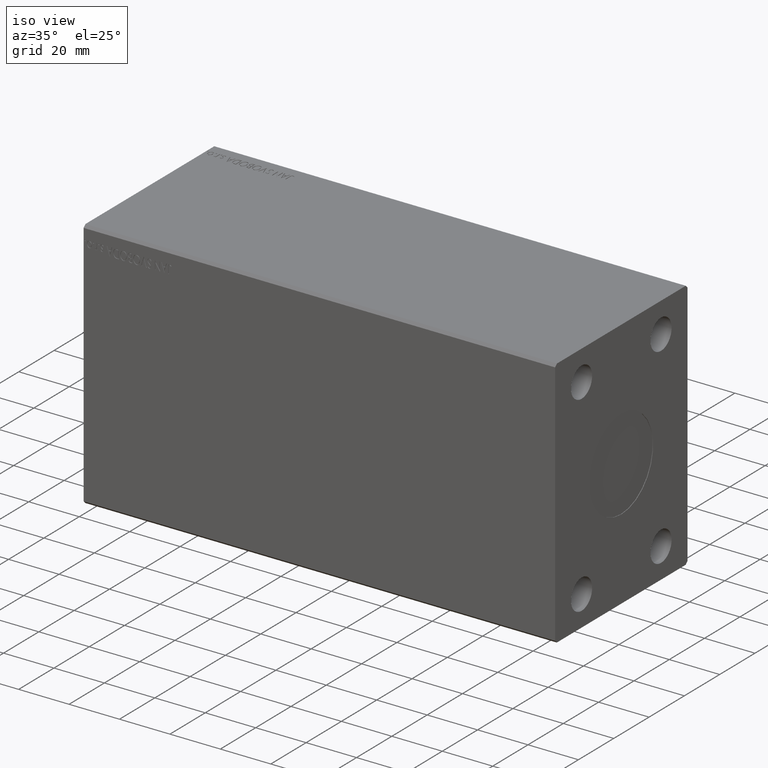
[diagram: clean part render]
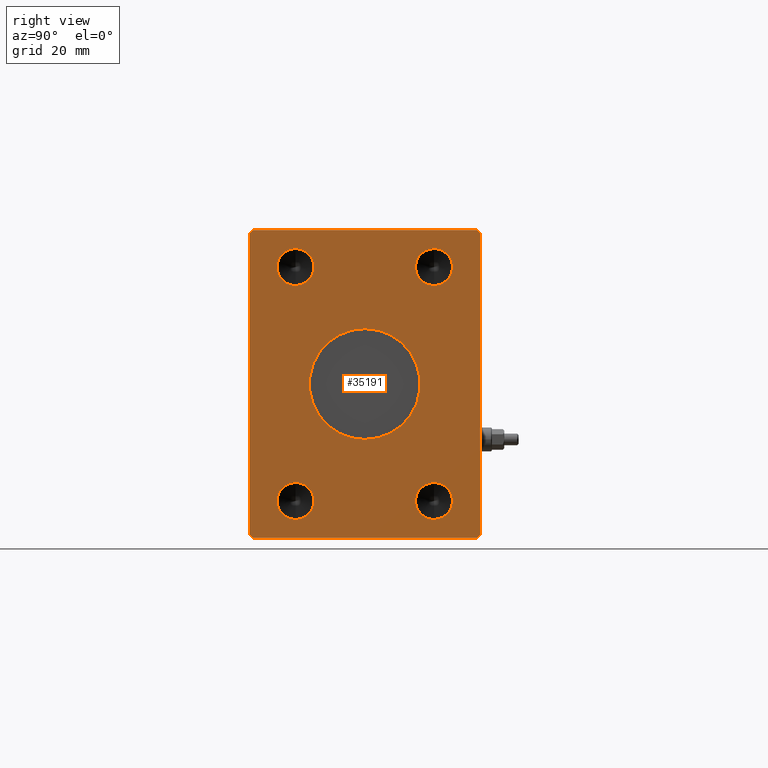
[diagram: tour spotlight — one face highlighted and labeled with its STEP entity id]
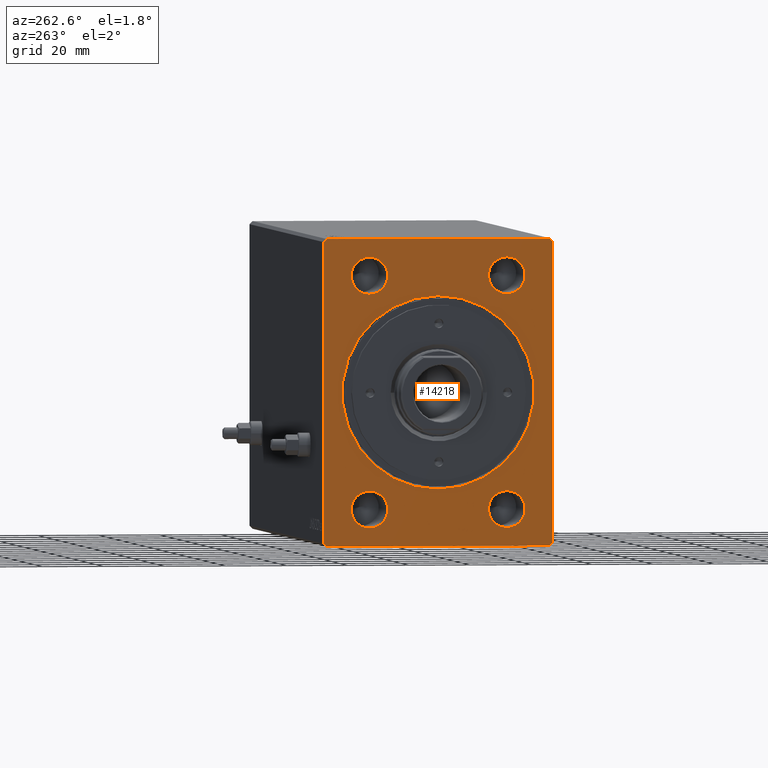
[diagram: tour spotlight — one face highlighted and labeled with its STEP entity id]
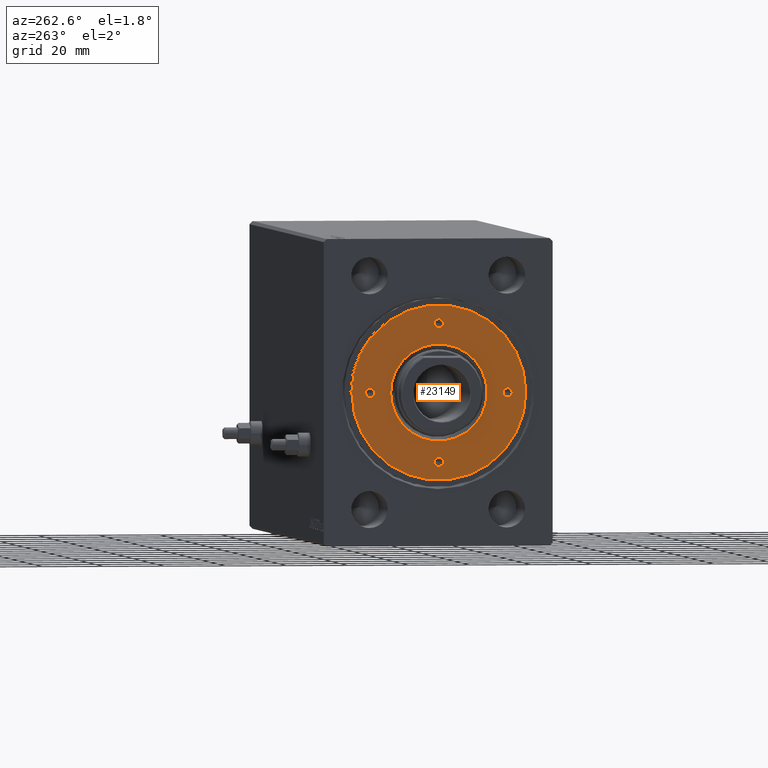
[diagram: tour spotlight — one face highlighted and labeled with its STEP entity id]
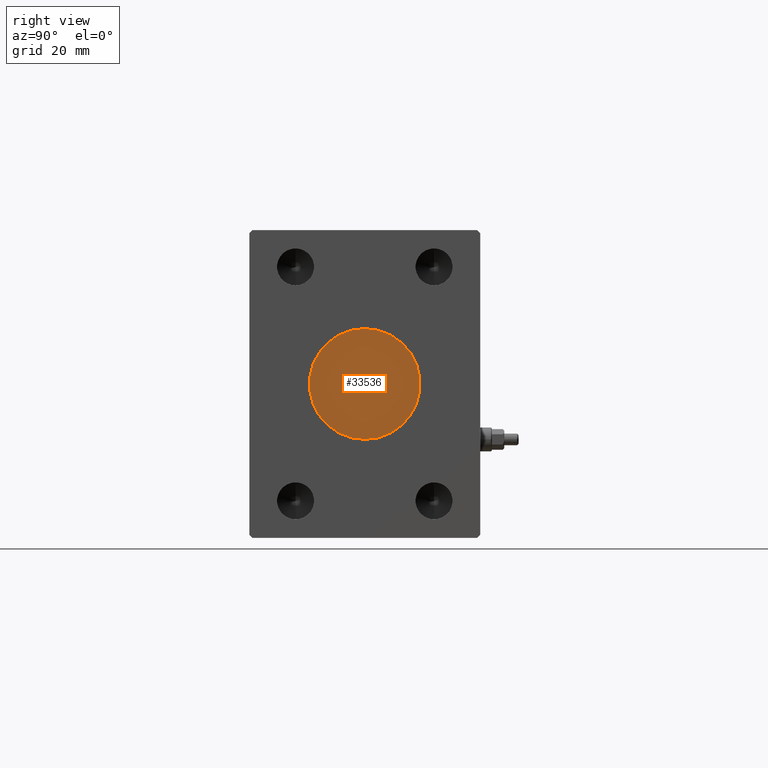
[diagram: tour spotlight — one face highlighted and labeled with its STEP entity id]
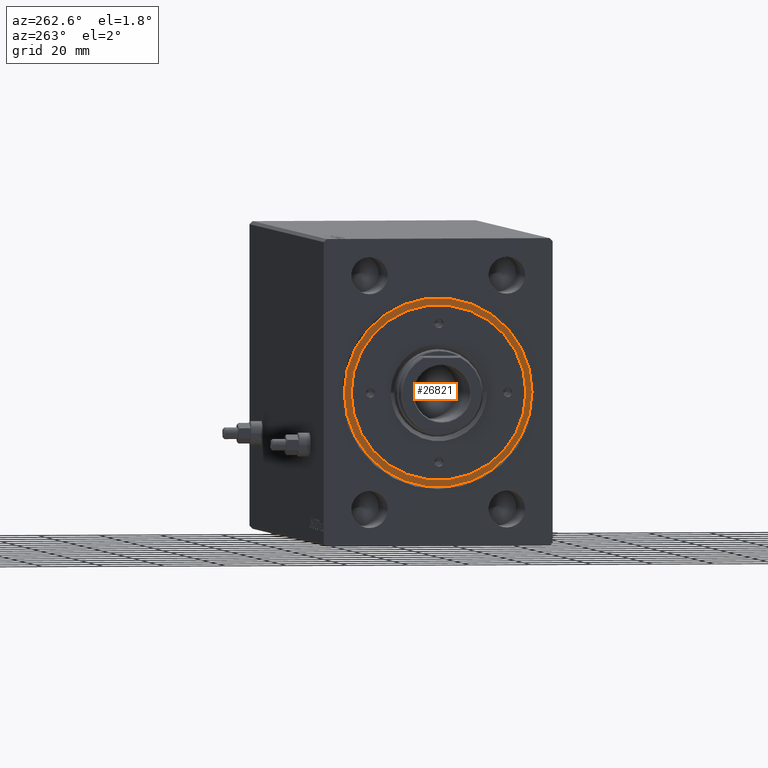
[diagram: tour spotlight — one face highlighted and labeled with its STEP entity id]
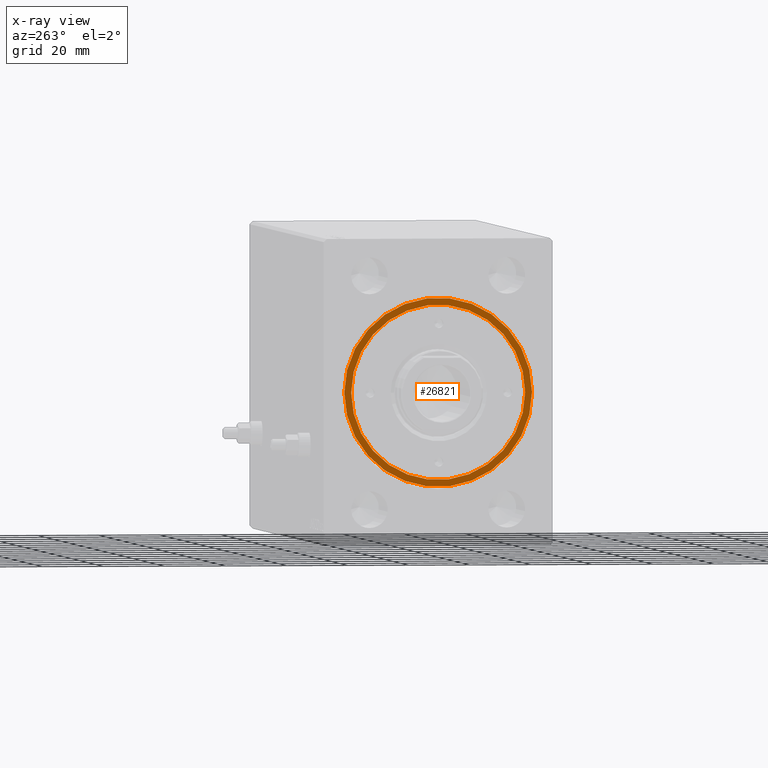
[diagram: x-ray of the same camera — body ghosted, this tour face saturated]
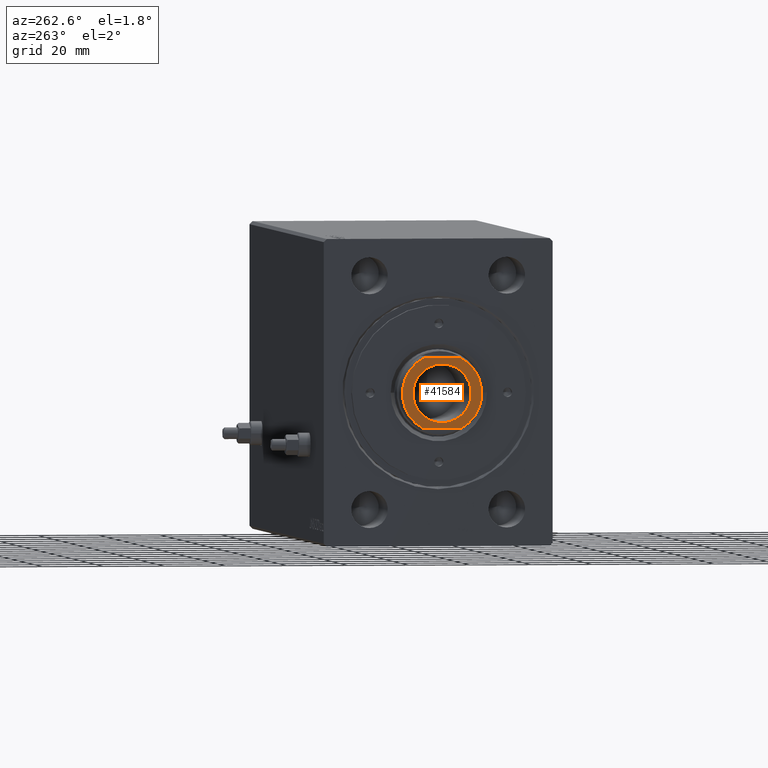
[diagram: tour spotlight — one face highlighted and labeled with its STEP entity id]
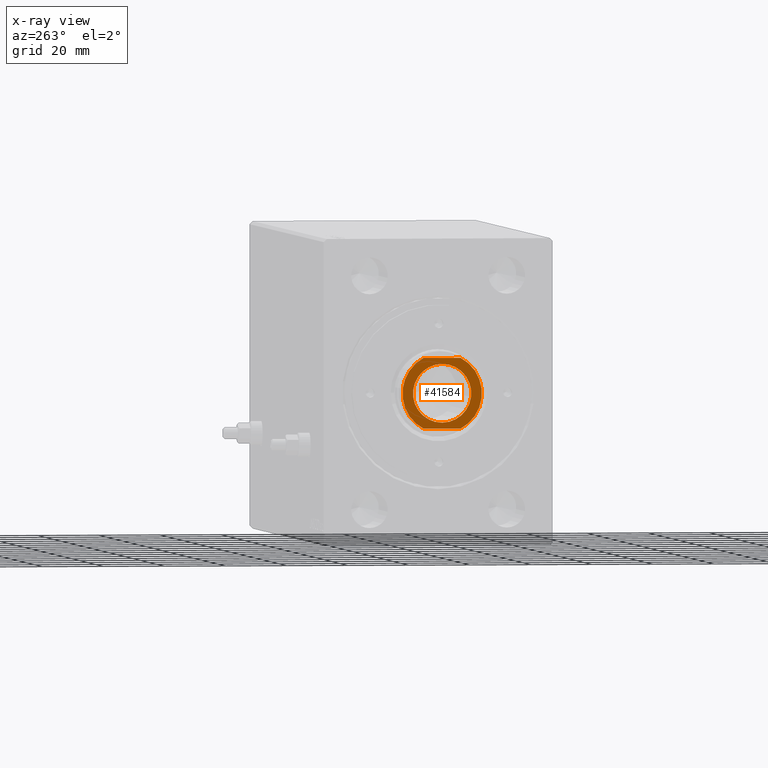
[diagram: x-ray of the same camera — body ghosted, this tour face saturated]
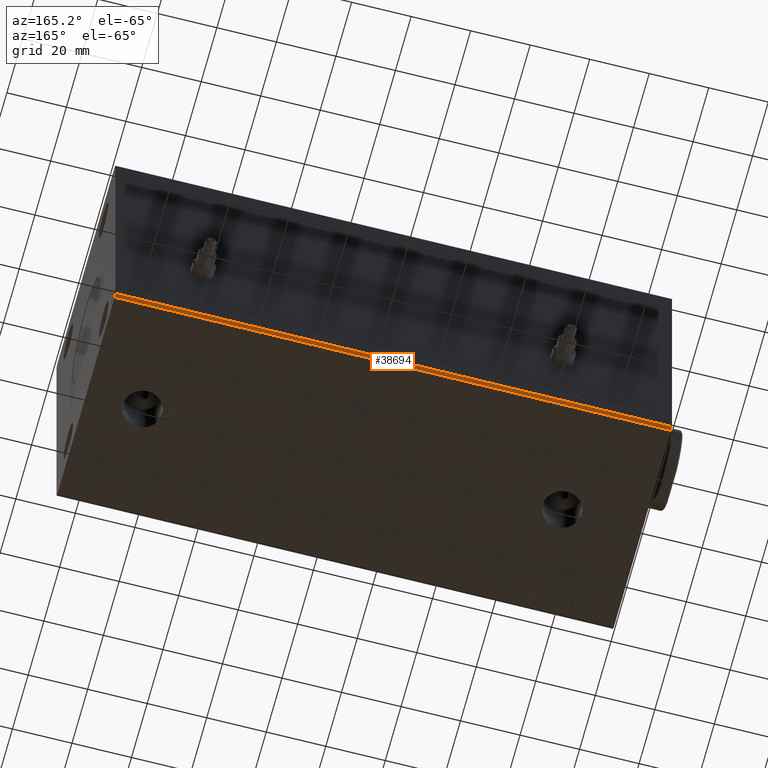
[diagram: tour spotlight — one face highlighted and labeled with its STEP entity id]
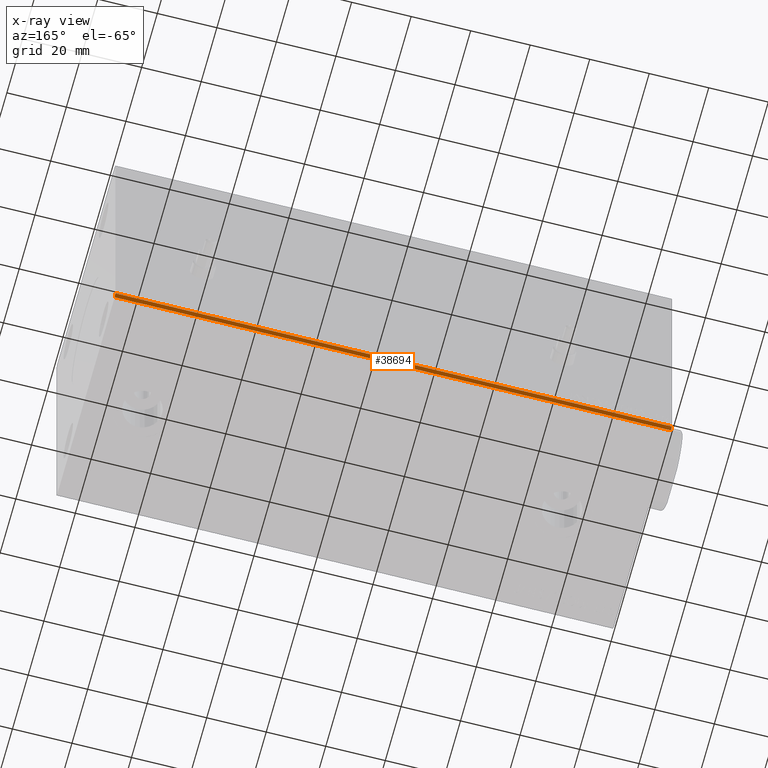
[diagram: x-ray of the same camera — body ghosted, this tour face saturated]
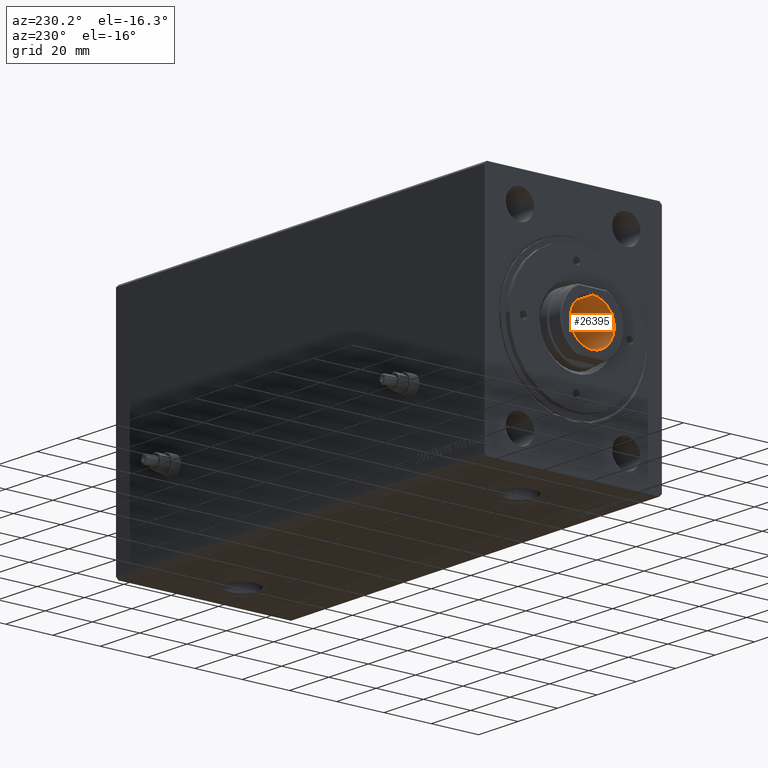
[diagram: tour spotlight — one face highlighted and labeled with its STEP entity id]
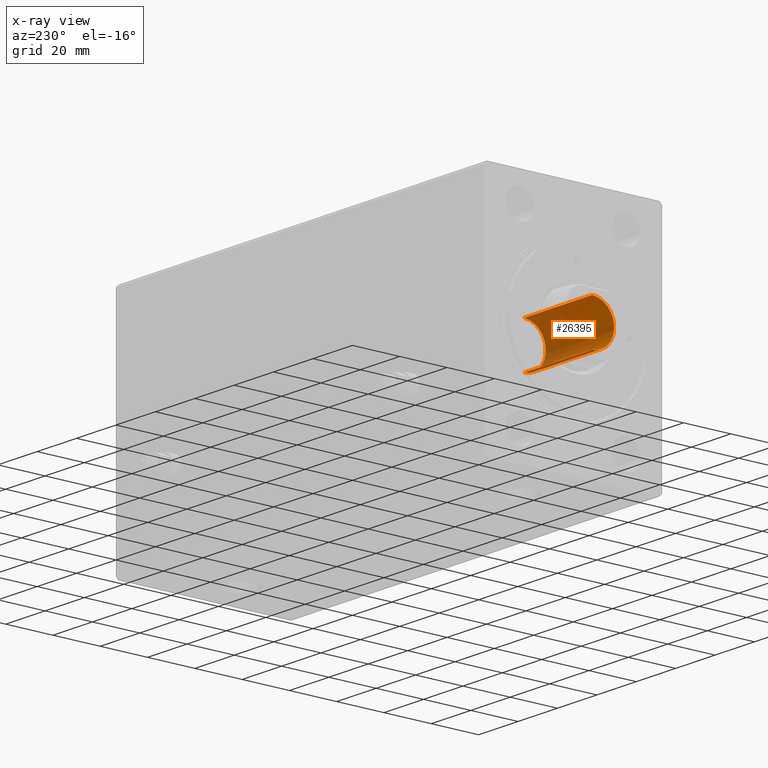
[diagram: x-ray of the same camera — body ghosted, this tour face saturated]
A machine part: a face-by-face anatomy tour. The part has 934 B-rep faces; the first image is the clean iso view, then the 8 largest visible faces are spotlighted one at a time (largest first), each with its STEP entity span.

Face 1 — right view, entity #35191. In plain terms, the highlighted planar face has unit normal (1, 0, 0).
Definition (entity closure, byte-faithful):
#173 = ORIENTED_EDGE ( 'NONE', *, *, #28682, .F. ) ;
#268 = CARTESIAN_POINT ( 'NONE',  ( 187.0000000000000000, -36.50000000000001421, 49.99999999999998579 ) ) ;
#509 = DIRECTION ( 'NONE',  ( 0.000000000000000000, 0.000000000000000000, -1.000000000000000000 ) ) ;
#732 = ORIENTED_EDGE ( 'NONE', *, *, #41343, .F. ) ;
#916 = LINE ( 'NONE', #24845, #12933 ) ;
#1038 = CARTESIAN_POINT ( 'NONE',  ( 187.0000000000000000, 0.000000000000000000, 0.000000000000000000 ) ) ;
#1375 = DIRECTION ( 'NONE',  ( 1.000000000000000000, -0.000000000000000000, -0.000000000000000000 ) ) ;
#1711 = DIRECTION ( 'NONE',  ( 1.000000000000000000, -0.000000000000000000, -0.000000000000000000 ) ) ;
#1961 = DIRECTION ( 'NONE',  ( 1.000000000000000000, -0.000000000000000000, -0.000000000000000000 ) ) ;
#2505 = VERTEX_POINT ( 'NONE', #8959 ) ;
#3179 = VERTEX_POINT ( 'NONE', #4751 ) ;
#4086 = AXIS2_PLACEMENT_3D ( 'NONE', #44515, #23763, #10119 ) ;
#4137 = CARTESIAN_POINT ( 'NONE',  ( 187.0000000000000000, 22.50000000000000000, -38.00000000000000000 ) ) ;
#4140 = CIRCLE ( 'NONE', #36854, 5.999999999999998224 ) ;
#4751 = CARTESIAN_POINT ( 'NONE',  ( 187.0000000000000000, -22.50000000000000000, 32.00000000000000000 ) ) ;
#4926 = VECTOR ( 'NONE', #19981, 1000.000000000000114 ) ;
#4945 = CARTESIAN_POINT ( 'NONE',  ( 187.0000000000000000, -22.50000000000000000, -38.00000000000000711 ) ) ;
#4960 = AXIS2_PLACEMENT_3D ( 'NONE', #1038, #7890, #29071 ) ;
#5125 = CIRCLE ( 'NONE', #34240, 5.999999999999998224 ) ;
#5484 = VERTEX_POINT ( 'NONE', #268 ) ;
#5772 = AXIS2_PLACEMENT_3D ( 'NONE', #12751, #16400, #32811 ) ;
#7683 = DIRECTION ( 'NONE',  ( 1.000000000000000000, -0.000000000000000000, -0.000000000000000000 ) ) ;
#7890 = DIRECTION ( 'NONE',  ( 1.000000000000000000, 0.000000000000000000, 0.000000000000000000 ) ) ;
#7990 = VERTEX_POINT ( 'NONE', #38682 ) ;
#8010 = AXIS2_PLACEMENT_3D ( 'NONE', #37524, #37305, #26574 ) ;
#8250 = CARTESIAN_POINT ( 'NONE',  ( 187.0000000000000000, 37.50000000000000711, -49.00000000000000000 ) ) ;
#8347 = FACE_OUTER_BOUND ( 'NONE', #36315, .T. ) ;
#8603 = CIRCLE ( 'NONE', #23868, 5.999999999999998224 ) ;
#8959 = CARTESIAN_POINT ( 'NONE',  ( 187.0000000000000000, 0.000000000000000000, -18.00000000000000000 ) ) ;
#9028 = DIRECTION ( 'NONE',  ( 0.000000000000000000, 0.000000000000000000, -1.000000000000000000 ) ) ;
#9197 = CARTESIAN_POINT ( 'NONE',  ( 187.0000000000000000, 2.204364238465235428E-15, 18.00000000000000000 ) ) ;
#10102 = LINE ( 'NONE', #44030, #44494 ) ;
#10119 = DIRECTION ( 'NONE',  ( 0.000000000000000000, 0.000000000000000000, -1.000000000000000000 ) ) ;
#10141 = EDGE_CURVE ( 'NONE', #14075, #43579, #32393, .T. ) ;
#10294 = DIRECTION ( 'NONE',  ( 0.000000000000000000, 1.000000000000000000, 0.000000000000000000 ) ) ;
#10453 = VERTEX_POINT ( 'NONE', #21384 ) ;
#11674 = DIRECTION ( 'NONE',  ( 1.000000000000000000, -0.000000000000000000, -0.000000000000000000 ) ) ;
#11842 = EDGE_CURVE ( 'NONE', #23415, #24576, #23334, .T. ) ;
#11992 = DIRECTION ( 'NONE',  ( 1.000000000000000000, -0.000000000000000000, -0.000000000000000000 ) ) ;
#12106 = DIRECTION ( 'NONE',  ( 0.000000000000000000, 0.000000000000000000, 1.000000000000000000 ) ) ;
#12634 = VERTEX_POINT ( 'NONE', #34242 ) ;
#12751 = CARTESIAN_POINT ( 'NONE',  ( 187.0000000000000000, 0.000000000000000000, 0.000000000000000000 ) ) ;
#12933 = VECTOR ( 'NONE', #28499, 1000.000000000000000 ) ;
#13500 = EDGE_CURVE ( 'NONE', #5484, #25636, #10102, .T. ) ;
#13570 = CIRCLE ( 'NONE', #4086, 5.999999999999998224 ) ;
#13938 = LINE ( 'NONE', #38302, #23975 ) ;
#14075 = VERTEX_POINT ( 'NONE', #23856 ) ;
#15339 = AXIS2_PLACEMENT_3D ( 'NONE', #40470, #1961, #29767 ) ;
#15761 = CARTESIAN_POINT ( 'NONE',  ( 187.0000000000000000, -37.50000000000001421, 48.99999999999998579 ) ) ;
#16111 = EDGE_LOOP ( 'NONE', ( #732, #173 ) ) ;
#16400 = DIRECTION ( 'NONE',  ( 1.000000000000000000, 0.000000000000000000, 0.000000000000000000 ) ) ;
#16408 = ORIENTED_EDGE ( 'NONE', *, *, #40146, .F. ) ;
#17168 = LINE ( 'NONE', #27635, #26245 ) ;
#17542 = EDGE_CURVE ( 'NONE', #7990, #5484, #17168, .T. ) ;
#17824 = DIRECTION ( 'NONE',  ( 0.000000000000000000, -1.000000000000000000, -1.901066822988281457E-16 ) ) ;
#17833 = DIRECTION ( 'NONE',  ( 1.000000000000000000, -0.000000000000000000, -0.000000000000000000 ) ) ;
#18202 = AXIS2_PLACEMENT_3D ( 'NONE', #42430, #11674, #39458 ) ;
#18586 = VERTEX_POINT ( 'NONE', #27362 ) ;
#18873 = VECTOR ( 'NONE', #12106, 1000.000000000000000 ) ;
#19071 = ORIENTED_EDGE ( 'NONE', *, *, #13500, .T. ) ;
#19125 = ORIENTED_EDGE ( 'NONE', *, *, #22879, .F. ) ;
#19306 = CARTESIAN_POINT ( 'NONE',  ( 187.0000000000000000, -37.50000000000001421, -49.00000000000000000 ) ) ;
#19981 = DIRECTION ( 'NONE',  ( 0.000000000000000000, 0.7071067811865500152, -0.7071067811865451302 ) ) ;
#21301 = AXIS2_PLACEMENT_3D ( 'NONE', #26538, #11992, #9028 ) ;
#21384 = CARTESIAN_POINT ( 'NONE',  ( 187.0000000000000000, -22.50000000000000000, -44.00000000000000711 ) ) ;
#22203 = ORIENTED_EDGE ( 'NONE', *, *, #37122, .F. ) ;
#22675 = PLANE ( 'NONE',  #4960 ) ;
#22879 = EDGE_CURVE ( 'NONE', #24576, #23415, #40970, .T. ) ;
#23082 = ORIENTED_EDGE ( 'NONE', *, *, #33664, .T. ) ;
#23251 = LINE ( 'NONE', #31227, #38451 ) ;
#23334 = CIRCLE ( 'NONE', #15339, 5.999999999999998224 ) ;
#23415 = VERTEX_POINT ( 'NONE', #24423 ) ;
#23763 = DIRECTION ( 'NONE',  ( 1.000000000000000000, -0.000000000000000000, -0.000000000000000000 ) ) ;
#23856 = CARTESIAN_POINT ( 'NONE',  ( 187.0000000000000000, 37.50000000000000711, -49.00000000000000000 ) ) ;
#23868 = AXIS2_PLACEMENT_3D ( 'NONE', #4137, #1375, #25521 ) ;
#23975 = VECTOR ( 'NONE', #42379, 1000.000000000000114 ) ;
#24307 = ORIENTED_EDGE ( 'NONE', *, *, #35730, .F. ) ;
#24423 = CARTESIAN_POINT ( 'NONE',  ( 187.0000000000000000, 22.50000000000000000, 44.00000000000000000 ) ) ;
#24576 = VERTEX_POINT ( 'NONE', #24596 ) ;
#24596 = CARTESIAN_POINT ( 'NONE',  ( 187.0000000000000000, 22.50000000000000000, 32.00000000000000000 ) ) ;
#24749 = ORIENTED_EDGE ( 'NONE', *, *, #17542, .T. ) ;
#24845 = CARTESIAN_POINT ( 'NONE',  ( 187.0000000000000000, -37.50000000000001421, 48.99999999999998579 ) ) ;
#25080 = CARTESIAN_POINT ( 'NONE',  ( 187.0000000000000000, -36.50000000000000711, -50.00000000000000000 ) ) ;
#25385 = CIRCLE ( 'NONE', #5772, 18.00000000000000000 ) ;
#25521 = DIRECTION ( 'NONE',  ( 0.000000000000000000, 0.000000000000000000, -1.000000000000000000 ) ) ;
#25636 = VERTEX_POINT ( 'NONE', #15761 ) ;
#25852 = FACE_BOUND ( 'NONE', #31681, .T. ) ;
#26245 = VECTOR ( 'NONE', #17824, 1000.000000000000000 ) ;
#26271 = DIRECTION ( 'NONE',  ( 0.000000000000000000, -0.7071067811865474617, 0.7071067811865474617 ) ) ;
#26538 = CARTESIAN_POINT ( 'NONE',  ( 187.0000000000000000, 22.50000000000000000, 38.00000000000000000 ) ) ;
#26574 = DIRECTION ( 'NONE',  ( 0.000000000000000000, 0.000000000000000000, -1.000000000000000000 ) ) ;
#26869 = CARTESIAN_POINT ( 'NONE',  ( 187.0000000000000000, 22.50000000000000000, -32.00000000000000000 ) ) ;
#27362 = CARTESIAN_POINT ( 'NONE',  ( 187.0000000000000000, -22.50000000000000000, 44.00000000000000000 ) ) ;
#27635 = CARTESIAN_POINT ( 'NONE',  ( 187.0000000000000000, 36.50000000000000711, 50.00000000000000000 ) ) ;
#27721 = CARTESIAN_POINT ( 'NONE',  ( 187.0000000000000000, 22.50000000000000000, -44.00000000000000000 ) ) ;
#28499 = DIRECTION ( 'NONE',  ( 0.000000000000000000, 0.000000000000000000, -1.000000000000000000 ) ) ;
#28611 = DIRECTION ( 'NONE',  ( 0.000000000000000000, 0.000000000000000000, -1.000000000000000000 ) ) ;
#28682 = EDGE_CURVE ( 'NONE', #18586, #3179, #13570, .T. ) ;
#28841 = FACE_BOUND ( 'NONE', #30382, .T. ) ;
#28993 = VERTEX_POINT ( 'NONE', #41713 ) ;
#29071 = DIRECTION ( 'NONE',  ( 0.000000000000000000, 0.000000000000000000, -1.000000000000000000 ) ) ;
#29699 = LINE ( 'NONE', #36984, #36236 ) ;
#29767 = DIRECTION ( 'NONE',  ( 0.000000000000000000, 0.000000000000000000, -1.000000000000000000 ) ) ;
#29830 = CIRCLE ( 'NONE', #8010, 18.00000000000000000 ) ;
#30017 = LINE ( 'NONE', #19306, #4926 ) ;
#30382 = EDGE_LOOP ( 'NONE', ( #37774, #44301 ) ) ;
#30593 = CIRCLE ( 'NONE', #18202, 5.999999999999998224 ) ;
#31071 = VERTEX_POINT ( 'NONE', #9197 ) ;
#31227 = CARTESIAN_POINT ( 'NONE',  ( 187.0000000000000000, -36.50000000000000711, -50.00000000000000000 ) ) ;
#31493 = CARTESIAN_POINT ( 'NONE',  ( 187.0000000000000000, 37.50000000000000711, 49.00000000000000000 ) ) ;
#31638 = EDGE_CURVE ( 'NONE', #28993, #10453, #4140, .T. ) ;
#31681 = EDGE_LOOP ( 'NONE', ( #24307, #22203 ) ) ;
#32268 = FACE_BOUND ( 'NONE', #16111, .T. ) ;
#32370 = CARTESIAN_POINT ( 'NONE',  ( 187.0000000000000000, 36.50000000000000711, -50.00000000000000000 ) ) ;
#32393 = LINE ( 'NONE', #8250, #18873 ) ;
#32716 = FACE_BOUND ( 'NONE', #33385, .T. ) ;
#32791 = ORIENTED_EDGE ( 'NONE', *, *, #35939, .T. ) ;
#32811 = DIRECTION ( 'NONE',  ( 0.000000000000000000, 0.000000000000000000, -1.000000000000000000 ) ) ;
#33143 = ORIENTED_EDGE ( 'NONE', *, *, #11842, .F. ) ;
#33385 = EDGE_LOOP ( 'NONE', ( #16408, #37277 ) ) ;
#33664 = EDGE_CURVE ( 'NONE', #25636, #12634, #916, .T. ) ;
#34152 = EDGE_CURVE ( 'NONE', #12634, #36274, #30017, .T. ) ;
#34240 = AXIS2_PLACEMENT_3D ( 'NONE', #39760, #1711, #28611 ) ;
#34242 = CARTESIAN_POINT ( 'NONE',  ( 187.0000000000000000, -37.50000000000001421, -49.00000000000000000 ) ) ;
#34813 = CIRCLE ( 'NONE', #40628, 5.999999999999998224 ) ;
#35191 = ADVANCED_FACE ( 'NONE', ( #32716, #36351, #28841, #25852, #32268, #8347 ), #22675, .T. ) ;
#35730 = EDGE_CURVE ( 'NONE', #42322, #41862, #8603, .T. ) ;
#35939 = EDGE_CURVE ( 'NONE', #43579, #7990, #29699, .T. ) ;
#36052 = CARTESIAN_POINT ( 'NONE',  ( 187.0000000000000000, 22.50000000000000000, -38.00000000000000000 ) ) ;
#36064 = ORIENTED_EDGE ( 'NONE', *, *, #38732, .T. ) ;
#36159 = EDGE_LOOP ( 'NONE', ( #19125, #33143 ) ) ;
#36236 = VECTOR ( 'NONE', #26271, 1000.000000000000114 ) ;
#36274 = VERTEX_POINT ( 'NONE', #25080 ) ;
#36315 = EDGE_LOOP ( 'NONE', ( #32791, #24749, #19071, #23082, #44567, #42466, #36064, #36476 ) ) ;
#36351 = FACE_BOUND ( 'NONE', #36159, .T. ) ;
#36467 = EDGE_CURVE ( 'NONE', #36274, #40536, #23251, .T. ) ;
#36476 = ORIENTED_EDGE ( 'NONE', *, *, #10141, .T. ) ;
#36746 = DIRECTION ( 'NONE',  ( 0.000000000000000000, -0.7071067811865474617, -0.7071067811865474617 ) ) ;
#36854 = AXIS2_PLACEMENT_3D ( 'NONE', #4945, #7683, #42752 ) ;
#36984 = CARTESIAN_POINT ( 'NONE',  ( 187.0000000000000000, 37.50000000000000711, 49.00000000000000000 ) ) ;
#37122 = EDGE_CURVE ( 'NONE', #41862, #42322, #34813, .T. ) ;
#37277 = ORIENTED_EDGE ( 'NONE', *, *, #38385, .F. ) ;
#37305 = DIRECTION ( 'NONE',  ( 1.000000000000000000, 0.000000000000000000, 0.000000000000000000 ) ) ;
#37524 = CARTESIAN_POINT ( 'NONE',  ( 187.0000000000000000, 0.000000000000000000, 0.000000000000000000 ) ) ;
#37774 = ORIENTED_EDGE ( 'NONE', *, *, #44851, .F. ) ;
#38302 = CARTESIAN_POINT ( 'NONE',  ( 187.0000000000000000, 36.50000000000000711, -50.00000000000000000 ) ) ;
#38385 = EDGE_CURVE ( 'NONE', #31071, #2505, #25385, .T. ) ;
#38451 = VECTOR ( 'NONE', #10294, 1000.000000000000000 ) ;
#38682 = CARTESIAN_POINT ( 'NONE',  ( 187.0000000000000000, 36.50000000000000711, 50.00000000000000000 ) ) ;
#38732 = EDGE_CURVE ( 'NONE', #40536, #14075, #13938, .T. ) ;
#39458 = DIRECTION ( 'NONE',  ( 0.000000000000000000, 0.000000000000000000, -1.000000000000000000 ) ) ;
#39760 = CARTESIAN_POINT ( 'NONE',  ( 187.0000000000000000, -22.50000000000000000, 38.00000000000000000 ) ) ;
#40146 = EDGE_CURVE ( 'NONE', #2505, #31071, #29830, .T. ) ;
#40470 = CARTESIAN_POINT ( 'NONE',  ( 187.0000000000000000, 22.50000000000000000, 38.00000000000000000 ) ) ;
#40536 = VERTEX_POINT ( 'NONE', #32370 ) ;
#40628 = AXIS2_PLACEMENT_3D ( 'NONE', #36052, #17833, #509 ) ;
#40970 = CIRCLE ( 'NONE', #21301, 5.999999999999998224 ) ;
#41343 = EDGE_CURVE ( 'NONE', #3179, #18586, #5125, .T. ) ;
#41713 = CARTESIAN_POINT ( 'NONE',  ( 187.0000000000000000, -22.50000000000000000, -32.00000000000000711 ) ) ;
#41862 = VERTEX_POINT ( 'NONE', #26869 ) ;
#42322 = VERTEX_POINT ( 'NONE', #27721 ) ;
#42379 = DIRECTION ( 'NONE',  ( 0.000000000000000000, 0.7071067811865474617, 0.7071067811865474617 ) ) ;
#42430 = CARTESIAN_POINT ( 'NONE',  ( 187.0000000000000000, -22.50000000000000000, -38.00000000000000711 ) ) ;
#42466 = ORIENTED_EDGE ( 'NONE', *, *, #36467, .T. ) ;
#42752 = DIRECTION ( 'NONE',  ( 0.000000000000000000, 0.000000000000000000, -1.000000000000000000 ) ) ;
#43579 = VERTEX_POINT ( 'NONE', #31493 ) ;
#44030 = CARTESIAN_POINT ( 'NONE',  ( 187.0000000000000000, -36.50000000000001421, 49.99999999999998579 ) ) ;
#44301 = ORIENTED_EDGE ( 'NONE', *, *, #31638, .F. ) ;
#44494 = VECTOR ( 'NONE', #36746, 1000.000000000000114 ) ;
#44515 = CARTESIAN_POINT ( 'NONE',  ( 187.0000000000000000, -22.50000000000000000, 38.00000000000000000 ) ) ;
#44567 = ORIENTED_EDGE ( 'NONE', *, *, #34152, .T. ) ;
#44851 = EDGE_CURVE ( 'NONE', #10453, #28993, #30593, .T. ) ;

Face 2 — auxiliary view, entity #14218. In plain terms, the highlighted planar face has unit normal (1, 0, 0).
Definition (entity closure, byte-faithful):
#61 = CARTESIAN_POINT ( 'NONE',  ( 2.449293598294703949E-16, -22.50000000000000000, 32.00000000000000000 ) ) ;
#210 = CARTESIAN_POINT ( 'NONE',  ( 0.000000000000000000, 36.50000000000000711, 50.00000000000000000 ) ) ;
#443 = VERTEX_POINT ( 'NONE', #34396 ) ;
#1355 = CIRCLE ( 'NONE', #45051, 5.999999999999998224 ) ;
#1438 = AXIS2_PLACEMENT_3D ( 'NONE', #44272, #26951, #34029 ) ;
#1915 = EDGE_CURVE ( 'NONE', #2953, #20037, #19401, .T. ) ;
#2050 = CARTESIAN_POINT ( 'NONE',  ( 2.449293598294703949E-16, 22.50000000000000000, -38.00000000000000000 ) ) ;
#2124 = EDGE_LOOP ( 'NONE', ( #45019, #37261 ) ) ;
#2141 = VERTEX_POINT ( 'NONE', #41631 ) ;
#2331 = DIRECTION ( 'NONE',  ( 0.000000000000000000, 0.000000000000000000, 1.000000000000000000 ) ) ;
#2432 = EDGE_LOOP ( 'NONE', ( #8835, #38347 ) ) ;
#2537 = ORIENTED_EDGE ( 'NONE', *, *, #9952, .F. ) ;
#2953 = VERTEX_POINT ( 'NONE', #4530 ) ;
#3239 = CARTESIAN_POINT ( 'NONE',  ( 2.449293598294703949E-16, -22.50000000000000000, -38.00000000000000711 ) ) ;
#4035 = FACE_BOUND ( 'NONE', #2432, .T. ) ;
#4530 = CARTESIAN_POINT ( 'NONE',  ( 2.449293598294703949E-16, -22.50000000000000000, 44.00000000000000000 ) ) ;
#4699 = LINE ( 'NONE', #35911, #6604 ) ;
#4735 = EDGE_CURVE ( 'NONE', #443, #43414, #42773, .T. ) ;
#5165 = VECTOR ( 'NONE', #26966, 1000.000000000000000 ) ;
#5350 = CARTESIAN_POINT ( 'NONE',  ( 2.449293598294703949E-16, 22.50000000000000000, -32.00000000000000000 ) ) ;
#5816 = EDGE_CURVE ( 'NONE', #33887, #21785, #20246, .T. ) ;
#5924 = CARTESIAN_POINT ( 'NONE',  ( 0.000000000000000000, -37.50000000000001421, 48.99999999999998579 ) ) ;
#6431 = EDGE_CURVE ( 'NONE', #28360, #9572, #6452, .T. ) ;
#6452 = CIRCLE ( 'NONE', #39158, 31.45000000000005969 ) ;
#6562 = VECTOR ( 'NONE', #37332, 1000.000000000000114 ) ;
#6604 = VECTOR ( 'NONE', #36347, 1000.000000000000000 ) ;
#6686 = VECTOR ( 'NONE', #22121, 1000.000000000000114 ) ;
#7240 = VECTOR ( 'NONE', #9912, 1000.000000000000000 ) ;
#7302 = DIRECTION ( 'NONE',  ( -1.000000000000000000, -0.000000000000000000, -0.000000000000000000 ) ) ;
#7985 = CARTESIAN_POINT ( 'NONE',  ( 0.000000000000000000, -36.50000000000001421, 49.99999999999998579 ) ) ;
#8657 = DIRECTION ( 'NONE',  ( -1.000000000000000000, -0.000000000000000000, -0.000000000000000000 ) ) ;
#8703 = CIRCLE ( 'NONE', #34171, 5.999999999999998224 ) ;
#8835 = ORIENTED_EDGE ( 'NONE', *, *, #39548, .F. ) ;
#9160 = ORIENTED_EDGE ( 'NONE', *, *, #10007, .F. ) ;
#9572 = VERTEX_POINT ( 'NONE', #28229 ) ;
#9912 = DIRECTION ( 'NONE',  ( 0.000000000000000000, 1.000000000000000000, 0.000000000000000000 ) ) ;
#9952 = EDGE_CURVE ( 'NONE', #11680, #21862, #40394, .T. ) ;
#10007 = EDGE_CURVE ( 'NONE', #20037, #2953, #21085, .T. ) ;
#10046 = ORIENTED_EDGE ( 'NONE', *, *, #11144, .F. ) ;
#10111 = DIRECTION ( 'NONE',  ( 1.000000000000000000, 0.000000000000000000, 0.000000000000000000 ) ) ;
#10563 = EDGE_CURVE ( 'NONE', #34825, #26725, #30263, .T. ) ;
#10982 = ORIENTED_EDGE ( 'NONE', *, *, #39231, .F. ) ;
#11144 = EDGE_CURVE ( 'NONE', #22964, #2141, #29431, .T. ) ;
#11680 = VERTEX_POINT ( 'NONE', #18160 ) ;
#12116 = DIRECTION ( 'NONE',  ( 0.000000000000000000, 0.7071067811865500152, -0.7071067811865451302 ) ) ;
#12554 = DIRECTION ( 'NONE',  ( 0.000000000000000000, 0.000000000000000000, 1.000000000000000000 ) ) ;
#12872 = LINE ( 'NONE', #40655, #7240 ) ;
#13050 = DIRECTION ( 'NONE',  ( 0.000000000000000000, 0.000000000000000000, 1.000000000000000000 ) ) ;
#13089 = LINE ( 'NONE', #23080, #5165 ) ;
#13705 = CARTESIAN_POINT ( 'NONE',  ( 0.000000000000000000, 37.50000000000000711, -49.00000000000000000 ) ) ;
#14108 = DIRECTION ( 'NONE',  ( -1.000000000000000000, -0.000000000000000000, -0.000000000000000000 ) ) ;
#14218 = ADVANCED_FACE ( 'NONE', ( #35249, #4035, #36141, #16711, #37897, #17162 ), #19052, .F. ) ;
#14412 = EDGE_CURVE ( 'NONE', #34159, #34825, #15522, .T. ) ;
#15136 = CARTESIAN_POINT ( 'NONE',  ( 0.000000000000000000, 0.000000000000000000, 0.000000000000000000 ) ) ;
#15259 = ORIENTED_EDGE ( 'NONE', *, *, #18114, .F. ) ;
#15522 = LINE ( 'NONE', #36704, #6686 ) ;
#16711 = FACE_BOUND ( 'NONE', #24406, .T. ) ;
#16847 = ORIENTED_EDGE ( 'NONE', *, *, #23731, .F. ) ;
#17162 = FACE_OUTER_BOUND ( 'NONE', #23826, .T. ) ;
#17330 = CARTESIAN_POINT ( 'NONE',  ( 2.449293598294703949E-16, 22.50000000000000000, -38.00000000000000000 ) ) ;
#17529 = DIRECTION ( 'NONE',  ( 0.000000000000000000, 0.000000000000000000, 1.000000000000000000 ) ) ;
#17957 = CARTESIAN_POINT ( 'NONE',  ( 2.449293598294703949E-16, 22.50000000000000000, 38.00000000000000000 ) ) ;
#18114 = EDGE_CURVE ( 'NONE', #37620, #22964, #13089, .T. ) ;
#18160 = CARTESIAN_POINT ( 'NONE',  ( 0.000000000000000000, 36.50000000000000711, -50.00000000000000000 ) ) ;
#18648 = CARTESIAN_POINT ( 'NONE',  ( 0.000000000000000000, 0.000000000000000000, 31.45000000000005969 ) ) ;
#19052 = PLANE ( 'NONE',  #21927 ) ;
#19401 = CIRCLE ( 'NONE', #22998, 5.999999999999998224 ) ;
#19432 = CARTESIAN_POINT ( 'NONE',  ( 0.000000000000000000, 36.50000000000000711, -50.00000000000000000 ) ) ;
#20005 = LINE ( 'NONE', #36649, #6562 ) ;
#20037 = VERTEX_POINT ( 'NONE', #61 ) ;
#20246 = CIRCLE ( 'NONE', #30435, 5.999999999999998224 ) ;
#20319 = CARTESIAN_POINT ( 'NONE',  ( 2.449293598294703949E-16, -22.50000000000000000, 38.00000000000000000 ) ) ;
#20343 = DIRECTION ( 'NONE',  ( 0.000000000000000000, 0.000000000000000000, -1.000000000000000000 ) ) ;
#20873 = EDGE_CURVE ( 'NONE', #43414, #443, #34373, .T. ) ;
#21085 = CIRCLE ( 'NONE', #1438, 5.999999999999998224 ) ;
#21290 = DIRECTION ( 'NONE',  ( 1.000000000000000000, 0.000000000000000000, 0.000000000000000000 ) ) ;
#21785 = VERTEX_POINT ( 'NONE', #5350 ) ;
#21862 = VERTEX_POINT ( 'NONE', #13705 ) ;
#21927 = AXIS2_PLACEMENT_3D ( 'NONE', #26086, #10111, #20343 ) ;
#22121 = DIRECTION ( 'NONE',  ( 0.000000000000000000, -0.7071067811865474617, 0.7071067811865474617 ) ) ;
#22136 = CARTESIAN_POINT ( 'NONE',  ( 2.449293598294703949E-16, -22.50000000000000000, -32.00000000000000711 ) ) ;
#22683 = CARTESIAN_POINT ( 'NONE',  ( 0.000000000000000000, -37.50000000000001421, -49.00000000000000000 ) ) ;
#22773 = ORIENTED_EDGE ( 'NONE', *, *, #44059, .F. ) ;
#22817 = ORIENTED_EDGE ( 'NONE', *, *, #5816, .F. ) ;
#22964 = VERTEX_POINT ( 'NONE', #22683 ) ;
#22998 = AXIS2_PLACEMENT_3D ( 'NONE', #20319, #37643, #13050 ) ;
#23063 = DIRECTION ( 'NONE',  ( 0.000000000000000000, 0.7071067811865474617, 0.7071067811865474617 ) ) ;
#23076 = EDGE_LOOP ( 'NONE', ( #38684, #26524 ) ) ;
#23080 = CARTESIAN_POINT ( 'NONE',  ( 0.000000000000000000, -37.50000000000001421, 48.99999999999998579 ) ) ;
#23731 = EDGE_CURVE ( 'NONE', #21785, #33887, #42420, .T. ) ;
#23783 = VERTEX_POINT ( 'NONE', #44098 ) ;
#23826 = EDGE_LOOP ( 'NONE', ( #35968, #30104, #2537, #10982, #10046, #15259, #22773, #42705 ) ) ;
#24206 = DIRECTION ( 'NONE',  ( 0.000000000000000000, 0.000000000000000000, -1.000000000000000000 ) ) ;
#24406 = EDGE_LOOP ( 'NONE', ( #29425, #9160 ) ) ;
#25650 = DIRECTION ( 'NONE',  ( 0.000000000000000000, 0.000000000000000000, 1.000000000000000000 ) ) ;
#26024 = CARTESIAN_POINT ( 'NONE',  ( 2.449293598294703949E-16, 22.50000000000000000, 32.00000000000000000 ) ) ;
#26086 = CARTESIAN_POINT ( 'NONE',  ( 0.000000000000000000, 0.000000000000000000, 0.000000000000000000 ) ) ;
#26524 = ORIENTED_EDGE ( 'NONE', *, *, #20873, .F. ) ;
#26725 = VERTEX_POINT ( 'NONE', #7985 ) ;
#26746 = AXIS2_PLACEMENT_3D ( 'NONE', #17957, #14108, #17529 ) ;
#26944 = VECTOR ( 'NONE', #12116, 1000.000000000000114 ) ;
#26951 = DIRECTION ( 'NONE',  ( -1.000000000000000000, -0.000000000000000000, -0.000000000000000000 ) ) ;
#26966 = DIRECTION ( 'NONE',  ( 0.000000000000000000, 0.000000000000000000, -1.000000000000000000 ) ) ;
#27245 = EDGE_LOOP ( 'NONE', ( #16847, #22817 ) ) ;
#28074 = DIRECTION ( 'NONE',  ( 0.000000000000000000, 0.000000000000000000, 1.000000000000000000 ) ) ;
#28229 = CARTESIAN_POINT ( 'NONE',  ( 0.000000000000000000, 3.851514183318431927E-15, -31.45000000000005969 ) ) ;
#28360 = VERTEX_POINT ( 'NONE', #18648 ) ;
#29425 = ORIENTED_EDGE ( 'NONE', *, *, #1915, .F. ) ;
#29431 = LINE ( 'NONE', #43312, #26944 ) ;
#29859 = DIRECTION ( 'NONE',  ( -1.000000000000000000, -0.000000000000000000, -0.000000000000000000 ) ) ;
#30104 = ORIENTED_EDGE ( 'NONE', *, *, #41353, .F. ) ;
#30263 = LINE ( 'NONE', #36869, #44425 ) ;
#30435 = AXIS2_PLACEMENT_3D ( 'NONE', #2050, #29859, #12554 ) ;
#30728 = AXIS2_PLACEMENT_3D ( 'NONE', #32173, #31715, #28074 ) ;
#31048 = DIRECTION ( 'NONE',  ( 1.000000000000000000, 0.000000000000000000, 0.000000000000000000 ) ) ;
#31535 = AXIS2_PLACEMENT_3D ( 'NONE', #17330, #7302, #25650 ) ;
#31715 = DIRECTION ( 'NONE',  ( -1.000000000000000000, -0.000000000000000000, -0.000000000000000000 ) ) ;
#31778 = DIRECTION ( 'NONE',  ( 0.000000000000000000, 0.000000000000000000, -1.000000000000000000 ) ) ;
#31966 = EDGE_CURVE ( 'NONE', #9572, #28360, #39060, .T. ) ;
#32173 = CARTESIAN_POINT ( 'NONE',  ( 2.449293598294703949E-16, 22.50000000000000000, 38.00000000000000000 ) ) ;
#33887 = VERTEX_POINT ( 'NONE', #37370 ) ;
#34029 = DIRECTION ( 'NONE',  ( 0.000000000000000000, 0.000000000000000000, 1.000000000000000000 ) ) ;
#34159 = VERTEX_POINT ( 'NONE', #43901 ) ;
#34171 = AXIS2_PLACEMENT_3D ( 'NONE', #3239, #40597, #2331 ) ;
#34373 = CIRCLE ( 'NONE', #30728, 5.999999999999998224 ) ;
#34396 = CARTESIAN_POINT ( 'NONE',  ( 2.449293598294703949E-16, 22.50000000000000000, 44.00000000000000000 ) ) ;
#34825 = VERTEX_POINT ( 'NONE', #210 ) ;
#35249 = FACE_BOUND ( 'NONE', #23076, .T. ) ;
#35630 = VECTOR ( 'NONE', #23063, 1000.000000000000114 ) ;
#35911 = CARTESIAN_POINT ( 'NONE',  ( 0.000000000000000000, 37.50000000000000711, -49.00000000000000000 ) ) ;
#35968 = ORIENTED_EDGE ( 'NONE', *, *, #14412, .F. ) ;
#36141 = FACE_BOUND ( 'NONE', #27245, .T. ) ;
#36347 = DIRECTION ( 'NONE',  ( 0.000000000000000000, 0.000000000000000000, 1.000000000000000000 ) ) ;
#36441 = DIRECTION ( 'NONE',  ( 0.000000000000000000, 0.000000000000000000, 1.000000000000000000 ) ) ;
#36649 = CARTESIAN_POINT ( 'NONE',  ( 0.000000000000000000, -36.50000000000001421, 49.99999999999998579 ) ) ;
#36704 = CARTESIAN_POINT ( 'NONE',  ( 0.000000000000000000, 37.50000000000000711, 49.00000000000000000 ) ) ;
#36869 = CARTESIAN_POINT ( 'NONE',  ( 0.000000000000000000, 36.50000000000000711, 50.00000000000000000 ) ) ;
#37115 = VERTEX_POINT ( 'NONE', #22136 ) ;
#37261 = ORIENTED_EDGE ( 'NONE', *, *, #31966, .T. ) ;
#37332 = DIRECTION ( 'NONE',  ( 0.000000000000000000, -0.7071067811865474617, -0.7071067811865474617 ) ) ;
#37370 = CARTESIAN_POINT ( 'NONE',  ( 2.449293598294703949E-16, 22.50000000000000000, -44.00000000000000000 ) ) ;
#37546 = EDGE_CURVE ( 'NONE', #23783, #37115, #1355, .T. ) ;
#37620 = VERTEX_POINT ( 'NONE', #5924 ) ;
#37643 = DIRECTION ( 'NONE',  ( -1.000000000000000000, -0.000000000000000000, -0.000000000000000000 ) ) ;
#37897 = FACE_BOUND ( 'NONE', #2124, .T. ) ;
#38347 = ORIENTED_EDGE ( 'NONE', *, *, #37546, .F. ) ;
#38684 = ORIENTED_EDGE ( 'NONE', *, *, #4735, .F. ) ;
#39060 = CIRCLE ( 'NONE', #41970, 31.45000000000005969 ) ;
#39158 = AXIS2_PLACEMENT_3D ( 'NONE', #41540, #31048, #24206 ) ;
#39231 = EDGE_CURVE ( 'NONE', #2141, #11680, #12872, .T. ) ;
#39548 = EDGE_CURVE ( 'NONE', #37115, #23783, #8703, .T. ) ;
#39625 = CARTESIAN_POINT ( 'NONE',  ( 2.449293598294703949E-16, -22.50000000000000000, -38.00000000000000711 ) ) ;
#40394 = LINE ( 'NONE', #19432, #35630 ) ;
#40597 = DIRECTION ( 'NONE',  ( -1.000000000000000000, -0.000000000000000000, -0.000000000000000000 ) ) ;
#40655 = CARTESIAN_POINT ( 'NONE',  ( 0.000000000000000000, -36.50000000000000711, -50.00000000000000000 ) ) ;
#41353 = EDGE_CURVE ( 'NONE', #21862, #34159, #4699, .T. ) ;
#41540 = CARTESIAN_POINT ( 'NONE',  ( 0.000000000000000000, 0.000000000000000000, 0.000000000000000000 ) ) ;
#41631 = CARTESIAN_POINT ( 'NONE',  ( 0.000000000000000000, -36.50000000000000711, -50.00000000000000000 ) ) ;
#41970 = AXIS2_PLACEMENT_3D ( 'NONE', #15136, #21290, #31778 ) ;
#42420 = CIRCLE ( 'NONE', #31535, 5.999999999999998224 ) ;
#42705 = ORIENTED_EDGE ( 'NONE', *, *, #10563, .F. ) ;
#42773 = CIRCLE ( 'NONE', #26746, 5.999999999999998224 ) ;
#43312 = CARTESIAN_POINT ( 'NONE',  ( 0.000000000000000000, -37.50000000000001421, -49.00000000000000000 ) ) ;
#43414 = VERTEX_POINT ( 'NONE', #26024 ) ;
#43901 = CARTESIAN_POINT ( 'NONE',  ( 0.000000000000000000, 37.50000000000000711, 49.00000000000000000 ) ) ;
#44059 = EDGE_CURVE ( 'NONE', #26725, #37620, #20005, .T. ) ;
#44098 = CARTESIAN_POINT ( 'NONE',  ( 2.449293598294703949E-16, -22.50000000000000000, -44.00000000000000711 ) ) ;
#44156 = DIRECTION ( 'NONE',  ( 0.000000000000000000, -1.000000000000000000, -1.901066822988281457E-16 ) ) ;
#44272 = CARTESIAN_POINT ( 'NONE',  ( 2.449293598294703949E-16, -22.50000000000000000, 38.00000000000000000 ) ) ;
#44425 = VECTOR ( 'NONE', #44156, 1000.000000000000000 ) ;
#45019 = ORIENTED_EDGE ( 'NONE', *, *, #6431, .T. ) ;
#45051 = AXIS2_PLACEMENT_3D ( 'NONE', #39625, #8657, #36441 ) ;

Face 3 — auxiliary view, entity #23149. In plain terms, the highlighted planar face has unit normal (-1, 0, 0).
Definition (entity closure, byte-faithful):
#65 = CARTESIAN_POINT ( 'NONE',  ( 0.000000000000000000, 0.000000000000000000, 9.999999999999998224 ) ) ;
#223 = DIRECTION ( 'NONE',  ( 1.000000000000000000, 0.000000000000000000, 0.000000000000000000 ) ) ;
#324 = DIRECTION ( 'NONE',  ( 1.000000000000000000, 0.000000000000000000, 0.000000000000000000 ) ) ;
#439 = ORIENTED_EDGE ( 'NONE', *, *, #8729, .T. ) ;
#811 = CIRCLE ( 'NONE', #35051, 1.499999999999997780 ) ;
#905 = ORIENTED_EDGE ( 'NONE', *, *, #43386, .F. ) ;
#937 = DIRECTION ( 'NONE',  ( 0.000000000000000000, 0.000000000000000000, 1.000000000000000000 ) ) ;
#1292 = AXIS2_PLACEMENT_3D ( 'NONE', #19479, #37023, #44080 ) ;
#1665 = FACE_BOUND ( 'NONE', #23332, .T. ) ;
#1963 = DIRECTION ( 'NONE',  ( 1.000000000000000000, 0.000000000000000000, 0.000000000000000000 ) ) ;
#2237 = EDGE_CURVE ( 'NONE', #27144, #16680, #4119, .T. ) ;
#3374 = ORIENTED_EDGE ( 'NONE', *, *, #15664, .F. ) ;
#3673 = CIRCLE ( 'NONE', #10956, 1.499999999999996891 ) ;
#3799 = CARTESIAN_POINT ( 'NONE',  ( 21.00000000000000000, 1.836970198721027222E-16, 9.999999999999998224 ) ) ;
#3974 = DIRECTION ( 'NONE',  ( -0.000000000000000000, -0.000000000000000000, 1.000000000000000000 ) ) ;
#4119 = CIRCLE ( 'NONE', #29583, 15.79999999999997762 ) ;
#4792 = CARTESIAN_POINT ( 'NONE',  ( 1.499999999999996891, 22.50000000000000000, 9.999999999999998224 ) ) ;
#5787 = AXIS2_PLACEMENT_3D ( 'NONE', #29769, #21855, #1963 ) ;
#5810 = CIRCLE ( 'NONE', #24012, 1.499999999999996891 ) ;
#6874 = EDGE_CURVE ( 'NONE', #8075, #29957, #15923, .T. ) ;
#6944 = DIRECTION ( 'NONE',  ( 1.000000000000000000, 0.000000000000000000, 0.000000000000000000 ) ) ;
#7518 = DIRECTION ( 'NONE',  ( -0.000000000000000000, -0.000000000000000000, 1.000000000000000000 ) ) ;
#7813 = EDGE_LOOP ( 'NONE', ( #3374, #905 ) ) ;
#8075 = VERTEX_POINT ( 'NONE', #36823 ) ;
#8302 = FACE_BOUND ( 'NONE', #15936, .T. ) ;
#8456 = CIRCLE ( 'NONE', #40480, 1.499999999999997780 ) ;
#8729 = EDGE_CURVE ( 'NONE', #23397, #14828, #10859, .T. ) ;
#9192 = DIRECTION ( 'NONE',  ( 0.000000000000000000, 0.000000000000000000, 1.000000000000000000 ) ) ;
#9688 = CIRCLE ( 'NONE', #42387, 1.499999999999997780 ) ;
#9883 = CARTESIAN_POINT ( 'NONE',  ( 23.99999999999999645, 0.000000000000000000, 9.999999999999998224 ) ) ;
#10071 = ORIENTED_EDGE ( 'NONE', *, *, #28286, .F. ) ;
#10831 = ORIENTED_EDGE ( 'NONE', *, *, #23398, .T. ) ;
#10859 = CIRCLE ( 'NONE', #5787, 28.50000000000000000 ) ;
#10956 = AXIS2_PLACEMENT_3D ( 'NONE', #33959, #29628, #29405 ) ;
#11026 = CARTESIAN_POINT ( 'NONE',  ( -22.50000000000000000, 0.000000000000000000, 9.999999999999998224 ) ) ;
#11046 = DIRECTION ( 'NONE',  ( -0.000000000000000000, -0.000000000000000000, -1.000000000000000000 ) ) ;
#11100 = EDGE_LOOP ( 'NONE', ( #44627, #43716 ) ) ;
#12157 = FACE_BOUND ( 'NONE', #11100, .T. ) ;
#12616 = FACE_OUTER_BOUND ( 'NONE', #24002, .T. ) ;
#12958 = DIRECTION ( 'NONE',  ( 1.000000000000000000, 0.000000000000000000, 0.000000000000000000 ) ) ;
#13235 = EDGE_CURVE ( 'NONE', #16680, #27144, #39363, .T. ) ;
#14379 = CARTESIAN_POINT ( 'NONE',  ( -21.00000000000000000, 0.000000000000000000, 9.999999999999998224 ) ) ;
#14828 = VERTEX_POINT ( 'NONE', #32150 ) ;
#15246 = DIRECTION ( 'NONE',  ( 1.000000000000000000, 0.000000000000000000, 0.000000000000000000 ) ) ;
#15664 = EDGE_CURVE ( 'NONE', #38247, #17360, #3673, .T. ) ;
#15923 = CIRCLE ( 'NONE', #19557, 1.499999999999996891 ) ;
#15936 = EDGE_LOOP ( 'NONE', ( #42563, #10071 ) ) ;
#16069 = CARTESIAN_POINT ( 'NONE',  ( 0.000000000000000000, 0.000000000000000000, 9.999999999999998224 ) ) ;
#16438 = ORIENTED_EDGE ( 'NONE', *, *, #21998, .F. ) ;
#16680 = VERTEX_POINT ( 'NONE', #28957 ) ;
#17360 = VERTEX_POINT ( 'NONE', #29475 ) ;
#17705 = AXIS2_PLACEMENT_3D ( 'NONE', #65, #937, #20788 ) ;
#17773 = CARTESIAN_POINT ( 'NONE',  ( -22.50000000000000000, 0.000000000000000000, 9.999999999999998224 ) ) ;
#18075 = CARTESIAN_POINT ( 'NONE',  ( 0.000000000000000000, 22.50000000000000000, 9.999999999999998224 ) ) ;
#18760 = FACE_BOUND ( 'NONE', #7813, .T. ) ;
#19120 = EDGE_CURVE ( 'NONE', #33709, #37845, #811, .T. ) ;
#19214 = FACE_BOUND ( 'NONE', #43444, .T. ) ;
#19479 = CARTESIAN_POINT ( 'NONE',  ( 0.000000000000000000, -22.50000000000000000, 9.999999999999998224 ) ) ;
#19557 = AXIS2_PLACEMENT_3D ( 'NONE', #29810, #29584, #12958 ) ;
#20788 = DIRECTION ( 'NONE',  ( 1.000000000000000000, 0.000000000000000000, 0.000000000000000000 ) ) ;
#20834 = AXIS2_PLACEMENT_3D ( 'NONE', #38282, #34862, #21832 ) ;
#21387 = ORIENTED_EDGE ( 'NONE', *, *, #6874, .F. ) ;
#21832 = DIRECTION ( 'NONE',  ( 1.000000000000000000, 0.000000000000000000, 0.000000000000000000 ) ) ;
#21846 = DIRECTION ( 'NONE',  ( -0.000000000000000000, -0.000000000000000000, 1.000000000000000000 ) ) ;
#21855 = DIRECTION ( 'NONE',  ( 0.000000000000000000, 0.000000000000000000, 1.000000000000000000 ) ) ;
#21998 = EDGE_CURVE ( 'NONE', #37845, #33709, #9688, .T. ) ;
#22171 = CARTESIAN_POINT ( 'NONE',  ( 0.000000000000000000, 0.000000000000000000, 9.999999999999998224 ) ) ;
#23149 = ADVANCED_FACE ( 'NONE', ( #1665, #18760, #8302, #19214, #12157, #12616 ), #26486, .T. ) ;
#23217 = VERTEX_POINT ( 'NONE', #9883 ) ;
#23332 = EDGE_LOOP ( 'NONE', ( #24379, #16438 ) ) ;
#23397 = VERTEX_POINT ( 'NONE', #42417 ) ;
#23398 = EDGE_CURVE ( 'NONE', #14828, #23397, #25683, .T. ) ;
#23522 = AXIS2_PLACEMENT_3D ( 'NONE', #22171, #9192, #39717 ) ;
#24002 = EDGE_LOOP ( 'NONE', ( #10831, #439 ) ) ;
#24012 = AXIS2_PLACEMENT_3D ( 'NONE', #18075, #3974, #42904 ) ;
#24379 = ORIENTED_EDGE ( 'NONE', *, *, #19120, .F. ) ;
#25683 = CIRCLE ( 'NONE', #17705, 28.50000000000000000 ) ;
#26486 = PLANE ( 'NONE',  #23522 ) ;
#27144 = VERTEX_POINT ( 'NONE', #36837 ) ;
#28097 = CIRCLE ( 'NONE', #20834, 1.499999999999997780 ) ;
#28286 = EDGE_CURVE ( 'NONE', #40276, #23217, #8456, .T. ) ;
#28324 = EDGE_CURVE ( 'NONE', #23217, #40276, #28097, .T. ) ;
#28845 = ORIENTED_EDGE ( 'NONE', *, *, #35384, .F. ) ;
#28957 = CARTESIAN_POINT ( 'NONE',  ( -15.79999999999997407, 1.934941942652814868E-15, 9.999999999999998224 ) ) ;
#28987 = CIRCLE ( 'NONE', #1292, 1.499999999999996891 ) ;
#29405 = DIRECTION ( 'NONE',  ( 1.000000000000000000, 0.000000000000000000, 0.000000000000000000 ) ) ;
#29475 = CARTESIAN_POINT ( 'NONE',  ( -1.499999999999996891, 22.50000000000000000, 9.999999999999998224 ) ) ;
#29583 = AXIS2_PLACEMENT_3D ( 'NONE', #16069, #33615, #32936 ) ;
#29584 = DIRECTION ( 'NONE',  ( -0.000000000000000000, -0.000000000000000000, 1.000000000000000000 ) ) ;
#29628 = DIRECTION ( 'NONE',  ( -0.000000000000000000, -0.000000000000000000, 1.000000000000000000 ) ) ;
#29769 = CARTESIAN_POINT ( 'NONE',  ( 0.000000000000000000, 0.000000000000000000, 9.999999999999998224 ) ) ;
#29810 = CARTESIAN_POINT ( 'NONE',  ( 0.000000000000000000, -22.50000000000000000, 9.999999999999998224 ) ) ;
#29957 = VERTEX_POINT ( 'NONE', #37853 ) ;
#32150 = CARTESIAN_POINT ( 'NONE',  ( -28.50000000000000000, 0.000000000000000000, 9.999999999999998224 ) ) ;
#32936 = DIRECTION ( 'NONE',  ( 1.000000000000000000, 0.000000000000000000, 0.000000000000000000 ) ) ;
#33615 = DIRECTION ( 'NONE',  ( -0.000000000000000000, -0.000000000000000000, -1.000000000000000000 ) ) ;
#33709 = VERTEX_POINT ( 'NONE', #14379 ) ;
#33959 = CARTESIAN_POINT ( 'NONE',  ( 0.000000000000000000, 22.50000000000000000, 9.999999999999998224 ) ) ;
#34862 = DIRECTION ( 'NONE',  ( -0.000000000000000000, -0.000000000000000000, 1.000000000000000000 ) ) ;
#34968 = CARTESIAN_POINT ( 'NONE',  ( 0.000000000000000000, 0.000000000000000000, 9.999999999999998224 ) ) ;
#35051 = AXIS2_PLACEMENT_3D ( 'NONE', #11026, #44970, #6944 ) ;
#35384 = EDGE_CURVE ( 'NONE', #29957, #8075, #28987, .T. ) ;
#36823 = CARTESIAN_POINT ( 'NONE',  ( -1.499999999999996891, -22.50000000000000000, 9.999999999999998224 ) ) ;
#36837 = CARTESIAN_POINT ( 'NONE',  ( 15.79999999999997407, 0.000000000000000000, 9.999999999999998224 ) ) ;
#37023 = DIRECTION ( 'NONE',  ( -0.000000000000000000, -0.000000000000000000, 1.000000000000000000 ) ) ;
#37835 = CARTESIAN_POINT ( 'NONE',  ( 22.50000000000000000, 0.000000000000000000, 9.999999999999998224 ) ) ;
#37845 = VERTEX_POINT ( 'NONE', #40941 ) ;
#37853 = CARTESIAN_POINT ( 'NONE',  ( 1.499999999999996891, -22.50000000000000000, 9.999999999999998224 ) ) ;
#38247 = VERTEX_POINT ( 'NONE', #4792 ) ;
#38282 = CARTESIAN_POINT ( 'NONE',  ( 22.50000000000000000, 0.000000000000000000, 9.999999999999998224 ) ) ;
#39363 = CIRCLE ( 'NONE', #40848, 15.79999999999997762 ) ;
#39717 = DIRECTION ( 'NONE',  ( 1.000000000000000000, 0.000000000000000000, -0.000000000000000000 ) ) ;
#40276 = VERTEX_POINT ( 'NONE', #3799 ) ;
#40480 = AXIS2_PLACEMENT_3D ( 'NONE', #37835, #7518, #223 ) ;
#40848 = AXIS2_PLACEMENT_3D ( 'NONE', #34968, #11046, #324 ) ;
#40941 = CARTESIAN_POINT ( 'NONE',  ( -23.99999999999999645, 1.836970198721027222E-16, 9.999999999999998224 ) ) ;
#42387 = AXIS2_PLACEMENT_3D ( 'NONE', #17773, #21846, #15246 ) ;
#42417 = CARTESIAN_POINT ( 'NONE',  ( 28.50000000000000000, 3.490243377569956456E-15, 9.999999999999998224 ) ) ;
#42563 = ORIENTED_EDGE ( 'NONE', *, *, #28324, .F. ) ;
#42904 = DIRECTION ( 'NONE',  ( 1.000000000000000000, 0.000000000000000000, 0.000000000000000000 ) ) ;
#43386 = EDGE_CURVE ( 'NONE', #17360, #38247, #5810, .T. ) ;
#43444 = EDGE_LOOP ( 'NONE', ( #28845, #21387 ) ) ;
#43716 = ORIENTED_EDGE ( 'NONE', *, *, #13235, .T. ) ;
#44080 = DIRECTION ( 'NONE',  ( 1.000000000000000000, 0.000000000000000000, 0.000000000000000000 ) ) ;
#44627 = ORIENTED_EDGE ( 'NONE', *, *, #2237, .T. ) ;
#44970 = DIRECTION ( 'NONE',  ( -0.000000000000000000, -0.000000000000000000, 1.000000000000000000 ) ) ;

Face 4 — right view, entity #33536. In plain terms, the highlighted planar face has unit normal (1, 0, 0).
Definition (entity closure, byte-faithful):
#2170 = CIRCLE ( 'NONE', #35648, 18.00000000000000000 ) ;
#2876 = CARTESIAN_POINT ( 'NONE',  ( 186.7999999999999829, 0.000000000000000000, 0.000000000000000000 ) ) ;
#5532 = DIRECTION ( 'NONE',  ( 1.000000000000000000, 0.000000000000000000, 0.000000000000000000 ) ) ;
#6304 = DIRECTION ( 'NONE',  ( 0.000000000000000000, 0.000000000000000000, -1.000000000000000000 ) ) ;
#6690 = CARTESIAN_POINT ( 'NONE',  ( 186.7999999999999829, 0.000000000000000000, 0.000000000000000000 ) ) ;
#8377 = VERTEX_POINT ( 'NONE', #14863 ) ;
#10550 = DIRECTION ( 'NONE',  ( 1.000000000000000000, 0.000000000000000000, 0.000000000000000000 ) ) ;
#12597 = DIRECTION ( 'NONE',  ( 0.000000000000000000, 0.000000000000000000, -1.000000000000000000 ) ) ;
#12946 = ORIENTED_EDGE ( 'NONE', *, *, #43613, .T. ) ;
#14863 = CARTESIAN_POINT ( 'NONE',  ( 186.7999999999999829, 0.000000000000000000, -18.00000000000000000 ) ) ;
#17526 = CARTESIAN_POINT ( 'NONE',  ( 186.7999999999999829, 2.204364238465235428E-15, 18.00000000000000000 ) ) ;
#21099 = AXIS2_PLACEMENT_3D ( 'NONE', #2876, #24048, #6304 ) ;
#22828 = PLANE ( 'NONE',  #30399 ) ;
#24048 = DIRECTION ( 'NONE',  ( 1.000000000000000000, 0.000000000000000000, 0.000000000000000000 ) ) ;
#29451 = FACE_OUTER_BOUND ( 'NONE', #31744, .T. ) ;
#30399 = AXIS2_PLACEMENT_3D ( 'NONE', #36735, #5532, #12597 ) ;
#31744 = EDGE_LOOP ( 'NONE', ( #43589, #12946 ) ) ;
#33536 = ADVANCED_FACE ( 'NONE', ( #29451 ), #22828, .T. ) ;
#35648 = AXIS2_PLACEMENT_3D ( 'NONE', #6690, #10550, #37435 ) ;
#36735 = CARTESIAN_POINT ( 'NONE',  ( 186.7999999999999829, 0.000000000000000000, 0.000000000000000000 ) ) ;
#37435 = DIRECTION ( 'NONE',  ( 0.000000000000000000, 0.000000000000000000, -1.000000000000000000 ) ) ;
#40764 = CIRCLE ( 'NONE', #21099, 18.00000000000000000 ) ;
#41958 = VERTEX_POINT ( 'NONE', #17526 ) ;
#43589 = ORIENTED_EDGE ( 'NONE', *, *, #44347, .T. ) ;
#43613 = EDGE_CURVE ( 'NONE', #41958, #8377, #2170, .T. ) ;
#44347 = EDGE_CURVE ( 'NONE', #8377, #41958, #40764, .T. ) ;

Face 5 — auxiliary view, entity #26821. An x-ray twin of the same camera follows (body ghosted, this face saturated) — the face is partly hidden behind the body. In plain terms, the highlighted planar face has unit normal (-1, 0, 0).
Definition (entity closure, byte-faithful):
#1084 = ORIENTED_EDGE ( 'NONE', *, *, #15930, .T. ) ;
#1334 = DIRECTION ( 'NONE',  ( 1.000000000000000000, 0.000000000000000000, 0.000000000000000000 ) ) ;
#1403 = CARTESIAN_POINT ( 'NONE',  ( 0.000000000000000000, 0.000000000000000000, 8.199999999999999289 ) ) ;
#3074 = ORIENTED_EDGE ( 'NONE', *, *, #37042, .T. ) ;
#3564 = AXIS2_PLACEMENT_3D ( 'NONE', #1403, #25314, #39227 ) ;
#4754 = DIRECTION ( 'NONE',  ( 0.000000000000000000, 0.000000000000000000, 1.000000000000000000 ) ) ;
#5948 = EDGE_LOOP ( 'NONE', ( #3074, #1084 ) ) ;
#7458 = CARTESIAN_POINT ( 'NONE',  ( 30.75000000000000355, 3.765788907378111328E-15, 8.199999999999999289 ) ) ;
#7757 = ORIENTED_EDGE ( 'NONE', *, *, #44365, .F. ) ;
#9341 = DIRECTION ( 'NONE',  ( 1.000000000000000000, 0.000000000000000000, -0.000000000000000000 ) ) ;
#12062 = AXIS2_PLACEMENT_3D ( 'NONE', #44184, #12989, #9341 ) ;
#12185 = ORIENTED_EDGE ( 'NONE', *, *, #24697, .F. ) ;
#12303 = PLANE ( 'NONE',  #12062 ) ;
#12989 = DIRECTION ( 'NONE',  ( 0.000000000000000000, 0.000000000000000000, 1.000000000000000000 ) ) ;
#15017 = CARTESIAN_POINT ( 'NONE',  ( 0.000000000000000000, 0.000000000000000000, 8.199999999999999289 ) ) ;
#15930 = EDGE_CURVE ( 'NONE', #22800, #35494, #36405, .T. ) ;
#15944 = FACE_OUTER_BOUND ( 'NONE', #5948, .T. ) ;
#16021 = CARTESIAN_POINT ( 'NONE',  ( -30.75000000000000355, 0.000000000000000000, 8.199999999999999289 ) ) ;
#17519 = AXIS2_PLACEMENT_3D ( 'NONE', #35967, #4754, #18635 ) ;
#18635 = DIRECTION ( 'NONE',  ( 1.000000000000000000, 0.000000000000000000, 0.000000000000000000 ) ) ;
#22800 = VERTEX_POINT ( 'NONE', #7458 ) ;
#24275 = AXIS2_PLACEMENT_3D ( 'NONE', #15017, #25246, #1334 ) ;
#24697 = EDGE_CURVE ( 'NONE', #33466, #39780, #44648, .T. ) ;
#25246 = DIRECTION ( 'NONE',  ( 0.000000000000000000, 0.000000000000000000, 1.000000000000000000 ) ) ;
#25314 = DIRECTION ( 'NONE',  ( 0.000000000000000000, 0.000000000000000000, 1.000000000000000000 ) ) ;
#25470 = CIRCLE ( 'NONE', #29860, 28.50000000000000000 ) ;
#26821 = ADVANCED_FACE ( 'NONE', ( #37129, #15944 ), #12303, .T. ) ;
#29860 = AXIS2_PLACEMENT_3D ( 'NONE', #30677, #34537, #34088 ) ;
#30677 = CARTESIAN_POINT ( 'NONE',  ( 0.000000000000000000, 0.000000000000000000, 8.199999999999999289 ) ) ;
#33466 = VERTEX_POINT ( 'NONE', #34340 ) ;
#34088 = DIRECTION ( 'NONE',  ( 1.000000000000000000, 0.000000000000000000, 0.000000000000000000 ) ) ;
#34340 = CARTESIAN_POINT ( 'NONE',  ( -28.50000000000000000, 0.000000000000000000, 8.199999999999999289 ) ) ;
#34537 = DIRECTION ( 'NONE',  ( 0.000000000000000000, 0.000000000000000000, 1.000000000000000000 ) ) ;
#35494 = VERTEX_POINT ( 'NONE', #16021 ) ;
#35967 = CARTESIAN_POINT ( 'NONE',  ( 0.000000000000000000, 0.000000000000000000, 8.199999999999999289 ) ) ;
#36405 = CIRCLE ( 'NONE', #17519, 30.75000000000000355 ) ;
#37042 = EDGE_CURVE ( 'NONE', #35494, #22800, #42832, .T. ) ;
#37129 = FACE_BOUND ( 'NONE', #38012, .T. ) ;
#38012 = EDGE_LOOP ( 'NONE', ( #12185, #7757 ) ) ;
#39227 = DIRECTION ( 'NONE',  ( 1.000000000000000000, 0.000000000000000000, 0.000000000000000000 ) ) ;
#39780 = VERTEX_POINT ( 'NONE', #40541 ) ;
#40541 = CARTESIAN_POINT ( 'NONE',  ( 28.50000000000000000, 3.490243377569956456E-15, 8.199999999999999289 ) ) ;
#42832 = CIRCLE ( 'NONE', #3564, 30.75000000000000355 ) ;
#44184 = CARTESIAN_POINT ( 'NONE',  ( 0.000000000000000000, 0.000000000000000000, 8.199999999999999289 ) ) ;
#44365 = EDGE_CURVE ( 'NONE', #39780, #33466, #25470, .T. ) ;
#44648 = CIRCLE ( 'NONE', #24275, 28.50000000000000000 ) ;

Face 6 — auxiliary view, entity #41584. An x-ray twin of the same camera follows (body ghosted, this face saturated) — the face is partly hidden behind the body. In plain terms, the highlighted planar face has unit normal (-1, 0, 0).
Definition (entity closure, byte-faithful):
#1991 = EDGE_CURVE ( 'NONE', #28148, #10607, #6319, .T. ) ;
#2247 = EDGE_LOOP ( 'NONE', ( #14060, #4509, #43011, #20687 ) ) ;
#2335 = FACE_BOUND ( 'NONE', #44412, .T. ) ;
#3093 = ORIENTED_EDGE ( 'NONE', *, *, #1991, .T. ) ;
#4201 = VECTOR ( 'NONE', #21265, 1000.000000000000000 ) ;
#4509 = ORIENTED_EDGE ( 'NONE', *, *, #36790, .T. ) ;
#4777 = VERTEX_POINT ( 'NONE', #38703 ) ;
#6319 = CIRCLE ( 'NONE', #31761, 9.550000000000002487 ) ;
#6445 = DIRECTION ( 'NONE',  ( 0.000000000000000000, 0.000000000000000000, 1.000000000000000000 ) ) ;
#6922 = VERTEX_POINT ( 'NONE', #19782 ) ;
#7519 = DIRECTION ( 'NONE',  ( -0.000000000000000000, -0.000000000000000000, -1.000000000000000000 ) ) ;
#8632 = AXIS2_PLACEMENT_3D ( 'NONE', #35422, #18100, #21970 ) ;
#10597 = CARTESIAN_POINT ( 'NONE',  ( -11.50000000000000000, -6.184658438426516192, 179.1999999999999886 ) ) ;
#10607 = VERTEX_POINT ( 'NONE', #19551 ) ;
#13839 = CIRCLE ( 'NONE', #19643, 9.550000000000002487 ) ;
#14060 = ORIENTED_EDGE ( 'NONE', *, *, #34629, .T. ) ;
#14159 = DIRECTION ( 'NONE',  ( 1.000000000000000000, 0.000000000000000000, 0.000000000000000000 ) ) ;
#16242 = PLANE ( 'NONE',  #21138 ) ;
#16689 = DIRECTION ( 'NONE',  ( 1.000000000000000000, 0.000000000000000000, -0.000000000000000000 ) ) ;
#18100 = DIRECTION ( 'NONE',  ( 0.000000000000000000, 0.000000000000000000, 1.000000000000000000 ) ) ;
#18235 = DIRECTION ( 'NONE',  ( -0.000000000000000000, -0.000000000000000000, -1.000000000000000000 ) ) ;
#18525 = DIRECTION ( 'NONE',  ( 0.000000000000000000, 0.000000000000000000, 1.000000000000000000 ) ) ;
#18640 = VERTEX_POINT ( 'NONE', #38738 ) ;
#19551 = CARTESIAN_POINT ( 'NONE',  ( -9.550000000000002487, 1.169537693185722755E-15, 179.1999999999999886 ) ) ;
#19643 = AXIS2_PLACEMENT_3D ( 'NONE', #31447, #7519, #42360 ) ;
#19782 = CARTESIAN_POINT ( 'NONE',  ( -11.50000000000000000, -6.062177826491093491, 179.1999999999999886 ) ) ;
#19840 = EDGE_CURVE ( 'NONE', #18640, #4777, #39039, .T. ) ;
#20655 = ORIENTED_EDGE ( 'NONE', *, *, #43966, .T. ) ;
#20687 = ORIENTED_EDGE ( 'NONE', *, *, #22391, .T. ) ;
#21138 = AXIS2_PLACEMENT_3D ( 'NONE', #30810, #6445, #16689 ) ;
#21265 = DIRECTION ( 'NONE',  ( 0.000000000000000000, -1.000000000000000000, 0.000000000000000000 ) ) ;
#21573 = VERTEX_POINT ( 'NONE', #27465 ) ;
#21970 = DIRECTION ( 'NONE',  ( 1.000000000000000000, 0.000000000000000000, 0.000000000000000000 ) ) ;
#22391 = EDGE_CURVE ( 'NONE', #4777, #21573, #40211, .T. ) ;
#26799 = CIRCLE ( 'NONE', #8632, 13.00000000000001066 ) ;
#26925 = FACE_OUTER_BOUND ( 'NONE', #2247, .T. ) ;
#27465 = CARTESIAN_POINT ( 'NONE',  ( -11.50000000000000000, 6.062177826491097044, 179.1999999999999886 ) ) ;
#28148 = VERTEX_POINT ( 'NONE', #44451 ) ;
#28563 = AXIS2_PLACEMENT_3D ( 'NONE', #42905, #18525, #37381 ) ;
#28791 = CARTESIAN_POINT ( 'NONE',  ( 11.50000000000000000, 6.184658438426516192, 179.1999999999999886 ) ) ;
#30810 = CARTESIAN_POINT ( 'NONE',  ( 0.000000000000000000, 0.000000000000000000, 179.1999999999999886 ) ) ;
#31447 = CARTESIAN_POINT ( 'NONE',  ( 0.000000000000000000, 0.000000000000000000, 179.1999999999999886 ) ) ;
#31761 = AXIS2_PLACEMENT_3D ( 'NONE', #39809, #18235, #14159 ) ;
#34341 = VECTOR ( 'NONE', #42462, 1000.000000000000000 ) ;
#34629 = EDGE_CURVE ( 'NONE', #21573, #6922, #41801, .T. ) ;
#35422 = CARTESIAN_POINT ( 'NONE',  ( 0.000000000000000000, 0.000000000000000000, 179.1999999999999886 ) ) ;
#36790 = EDGE_CURVE ( 'NONE', #6922, #18640, #26799, .T. ) ;
#37381 = DIRECTION ( 'NONE',  ( 1.000000000000000000, 0.000000000000000000, 0.000000000000000000 ) ) ;
#38703 = CARTESIAN_POINT ( 'NONE',  ( 11.50000000000000000, 6.062177826491094379, 179.1999999999999886 ) ) ;
#38738 = CARTESIAN_POINT ( 'NONE',  ( 11.50000000000000000, -6.062177826491093491, 179.1999999999999886 ) ) ;
#39039 = LINE ( 'NONE', #28791, #34341 ) ;
#39809 = CARTESIAN_POINT ( 'NONE',  ( 0.000000000000000000, 0.000000000000000000, 179.1999999999999886 ) ) ;
#40211 = CIRCLE ( 'NONE', #28563, 13.00000000000001066 ) ;
#41584 = ADVANCED_FACE ( 'NONE', ( #26925, #2335 ), #16242, .T. ) ;
#41801 = LINE ( 'NONE', #10597, #4201 ) ;
#42360 = DIRECTION ( 'NONE',  ( 1.000000000000000000, 0.000000000000000000, 0.000000000000000000 ) ) ;
#42462 = DIRECTION ( 'NONE',  ( 0.000000000000000000, 1.000000000000000000, 0.000000000000000000 ) ) ;
#42905 = CARTESIAN_POINT ( 'NONE',  ( 0.000000000000000000, 0.000000000000000000, 179.1999999999999886 ) ) ;
#43011 = ORIENTED_EDGE ( 'NONE', *, *, #19840, .T. ) ;
#43966 = EDGE_CURVE ( 'NONE', #10607, #28148, #13839, .T. ) ;
#44412 = EDGE_LOOP ( 'NONE', ( #3093, #20655 ) ) ;
#44451 = CARTESIAN_POINT ( 'NONE',  ( 9.550000000000002487, 0.000000000000000000, 179.1999999999999886 ) ) ;

Face 7 — auxiliary view, entity #38694. An x-ray twin of the same camera follows (body ghosted, this face saturated) — the face is partly hidden behind the body. In plain terms, the highlighted planar face has unit normal (0, -0.7071, 0.7071).
Definition (entity closure, byte-faithful):
#1580 = ORIENTED_EDGE ( 'NONE', *, *, #9952, .T. ) ;
#1995 = ORIENTED_EDGE ( 'NONE', *, *, #38732, .F. ) ;
#3679 = CARTESIAN_POINT ( 'NONE',  ( 187.0000000000000000, 36.50000000000000711, -50.00000000000000000 ) ) ;
#4323 = LINE ( 'NONE', #7742, #34220 ) ;
#7742 = CARTESIAN_POINT ( 'NONE',  ( 187.0000000000000000, 37.50000000000000711, -49.00000000000000000 ) ) ;
#9952 = EDGE_CURVE ( 'NONE', #11680, #21862, #40394, .T. ) ;
#11390 = EDGE_CURVE ( 'NONE', #14075, #21862, #4323, .T. ) ;
#11680 = VERTEX_POINT ( 'NONE', #18160 ) ;
#13705 = CARTESIAN_POINT ( 'NONE',  ( 0.000000000000000000, 37.50000000000000711, -49.00000000000000000 ) ) ;
#13938 = LINE ( 'NONE', #38302, #23975 ) ;
#14075 = VERTEX_POINT ( 'NONE', #23856 ) ;
#17130 = FACE_OUTER_BOUND ( 'NONE', #38273, .T. ) ;
#17350 = DIRECTION ( 'NONE',  ( 0.000000000000000000, -0.7071067811865474617, -0.7071067811865474617 ) ) ;
#18160 = CARTESIAN_POINT ( 'NONE',  ( 0.000000000000000000, 36.50000000000000711, -50.00000000000000000 ) ) ;
#19192 = DIRECTION ( 'NONE',  ( -1.000000000000000000, -0.000000000000000000, -0.000000000000000000 ) ) ;
#19432 = CARTESIAN_POINT ( 'NONE',  ( 0.000000000000000000, 36.50000000000000711, -50.00000000000000000 ) ) ;
#21862 = VERTEX_POINT ( 'NONE', #13705 ) ;
#22365 = LINE ( 'NONE', #42888, #36333 ) ;
#23063 = DIRECTION ( 'NONE',  ( 0.000000000000000000, 0.7071067811865474617, 0.7071067811865474617 ) ) ;
#23856 = CARTESIAN_POINT ( 'NONE',  ( 187.0000000000000000, 37.50000000000000711, -49.00000000000000000 ) ) ;
#23975 = VECTOR ( 'NONE', #42379, 1000.000000000000114 ) ;
#31019 = DIRECTION ( 'NONE',  ( 0.000000000000000000, -0.7071067811865475727, 0.7071067811865475727 ) ) ;
#32370 = CARTESIAN_POINT ( 'NONE',  ( 187.0000000000000000, 36.50000000000000711, -50.00000000000000000 ) ) ;
#32499 = ORIENTED_EDGE ( 'NONE', *, *, #11390, .F. ) ;
#34220 = VECTOR ( 'NONE', #39400, 1000.000000000000000 ) ;
#35630 = VECTOR ( 'NONE', #23063, 1000.000000000000114 ) ;
#36333 = VECTOR ( 'NONE', #19192, 1000.000000000000000 ) ;
#38273 = EDGE_LOOP ( 'NONE', ( #1580, #32499, #1995, #40923 ) ) ;
#38302 = CARTESIAN_POINT ( 'NONE',  ( 187.0000000000000000, 36.50000000000000711, -50.00000000000000000 ) ) ;
#38694 = ADVANCED_FACE ( 'NONE', ( #17130 ), #40360, .F. ) ;
#38732 = EDGE_CURVE ( 'NONE', #40536, #14075, #13938, .T. ) ;
#39252 = AXIS2_PLACEMENT_3D ( 'NONE', #3679, #31019, #17350 ) ;
#39400 = DIRECTION ( 'NONE',  ( -1.000000000000000000, -0.000000000000000000, -0.000000000000000000 ) ) ;
#39455 = EDGE_CURVE ( 'NONE', #40536, #11680, #22365, .T. ) ;
#40360 = PLANE ( 'NONE',  #39252 ) ;
#40394 = LINE ( 'NONE', #19432, #35630 ) ;
#40536 = VERTEX_POINT ( 'NONE', #32370 ) ;
#40923 = ORIENTED_EDGE ( 'NONE', *, *, #39455, .T. ) ;
#42379 = DIRECTION ( 'NONE',  ( 0.000000000000000000, 0.7071067811865474617, 0.7071067811865474617 ) ) ;
#42888 = CARTESIAN_POINT ( 'NONE',  ( 187.0000000000000000, 36.50000000000000711, -50.00000000000000000 ) ) ;

Face 8 — auxiliary view, entity #26395. An x-ray twin of the same camera follows (body ghosted, this face saturated) — the face is partly hidden behind the body. In plain terms, the highlighted cylindrical surface (edge-blend (fillet) strip) has radius 9.25 mm, axis along (-1, 0, 0).
Definition (entity closure, byte-faithful):
#887 = VERTEX_POINT ( 'NONE', #16618 ) ;
#1109 = CARTESIAN_POINT ( 'NONE',  ( -9.249999999999996447, 1.132798289211301304E-15, 179.1999999999999886 ) ) ;
#1789 = LINE ( 'NONE', #1109, #33199 ) ;
#2834 = LINE ( 'NONE', #6043, #23391 ) ;
#2999 = CARTESIAN_POINT ( 'NONE',  ( 0.000000000000000000, 0.000000000000000000, 144.1999999999999886 ) ) ;
#3289 = DIRECTION ( 'NONE',  ( 1.000000000000000000, 0.000000000000000000, 0.000000000000000000 ) ) ;
#6043 = CARTESIAN_POINT ( 'NONE',  ( 9.249999999999996447, 0.000000000000000000, 179.1999999999999886 ) ) ;
#8009 = VERTEX_POINT ( 'NONE', #17935 ) ;
#9006 = AXIS2_PLACEMENT_3D ( 'NONE', #2999, #20296, #23933 ) ;
#9861 = ORIENTED_EDGE ( 'NONE', *, *, #19022, .F. ) ;
#12645 = EDGE_LOOP ( 'NONE', ( #42499, #29694, #32729, #9861 ) ) ;
#13268 = CARTESIAN_POINT ( 'NONE',  ( -9.249999999999996447, 1.132798289211301304E-15, 178.9000000000000057 ) ) ;
#15241 = DIRECTION ( 'NONE',  ( -0.000000000000000000, -0.000000000000000000, 1.000000000000000000 ) ) ;
#16618 = CARTESIAN_POINT ( 'NONE',  ( 9.249999999999994671, 0.000000000000000000, 144.1999999999999886 ) ) ;
#17732 = AXIS2_PLACEMENT_3D ( 'NONE', #43767, #43311, #36261 ) ;
#17935 = CARTESIAN_POINT ( 'NONE',  ( -9.249999999999994671, 1.132798289211300909E-15, 144.1999999999999886 ) ) ;
#19022 = EDGE_CURVE ( 'NONE', #887, #26045, #2834, .T. ) ;
#20296 = DIRECTION ( 'NONE',  ( -0.000000000000000000, -0.000000000000000000, 1.000000000000000000 ) ) ;
#20367 = FACE_OUTER_BOUND ( 'NONE', #12645, .T. ) ;
#23391 = VECTOR ( 'NONE', #27201, 1000.000000000000000 ) ;
#23933 = DIRECTION ( 'NONE',  ( 1.000000000000000000, 0.000000000000000000, 0.000000000000000000 ) ) ;
#24435 = EDGE_CURVE ( 'NONE', #29837, #26045, #41041, .T. ) ;
#24484 = EDGE_CURVE ( 'NONE', #8009, #887, #33754, .T. ) ;
#24494 = CARTESIAN_POINT ( 'NONE',  ( 9.249999999999996447, 0.000000000000000000, 178.9000000000000057 ) ) ;
#26045 = VERTEX_POINT ( 'NONE', #24494 ) ;
#26395 = ADVANCED_FACE ( 'NONE', ( #20367 ), #34281, .F. ) ;
#27201 = DIRECTION ( 'NONE',  ( -0.000000000000000000, -0.000000000000000000, 1.000000000000000000 ) ) ;
#27428 = CARTESIAN_POINT ( 'NONE',  ( 0.000000000000000000, 0.000000000000000000, 179.1999999999999886 ) ) ;
#29177 = EDGE_CURVE ( 'NONE', #8009, #29837, #1789, .T. ) ;
#29694 = ORIENTED_EDGE ( 'NONE', *, *, #29177, .T. ) ;
#29837 = VERTEX_POINT ( 'NONE', #13268 ) ;
#32729 = ORIENTED_EDGE ( 'NONE', *, *, #24435, .T. ) ;
#33199 = VECTOR ( 'NONE', #15241, 1000.000000000000000 ) ;
#33754 = CIRCLE ( 'NONE', #9006, 9.249999999999994671 ) ;
#34281 = CYLINDRICAL_SURFACE ( 'NONE', #34607, 9.249999999999996447 ) ;
#34607 = AXIS2_PLACEMENT_3D ( 'NONE', #27428, #41337, #3289 ) ;
#36261 = DIRECTION ( 'NONE',  ( 1.000000000000000000, 0.000000000000000000, 0.000000000000000000 ) ) ;
#41041 = CIRCLE ( 'NONE', #17732, 9.249999999999996447 ) ;
#41337 = DIRECTION ( 'NONE',  ( -0.000000000000000000, -0.000000000000000000, 1.000000000000000000 ) ) ;
#42499 = ORIENTED_EDGE ( 'NONE', *, *, #24484, .F. ) ;
#43311 = DIRECTION ( 'NONE',  ( 0.000000000000000000, 0.000000000000000000, 1.000000000000000000 ) ) ;
#43767 = CARTESIAN_POINT ( 'NONE',  ( 0.000000000000000000, 0.000000000000000000, 178.9000000000000057 ) ) ;